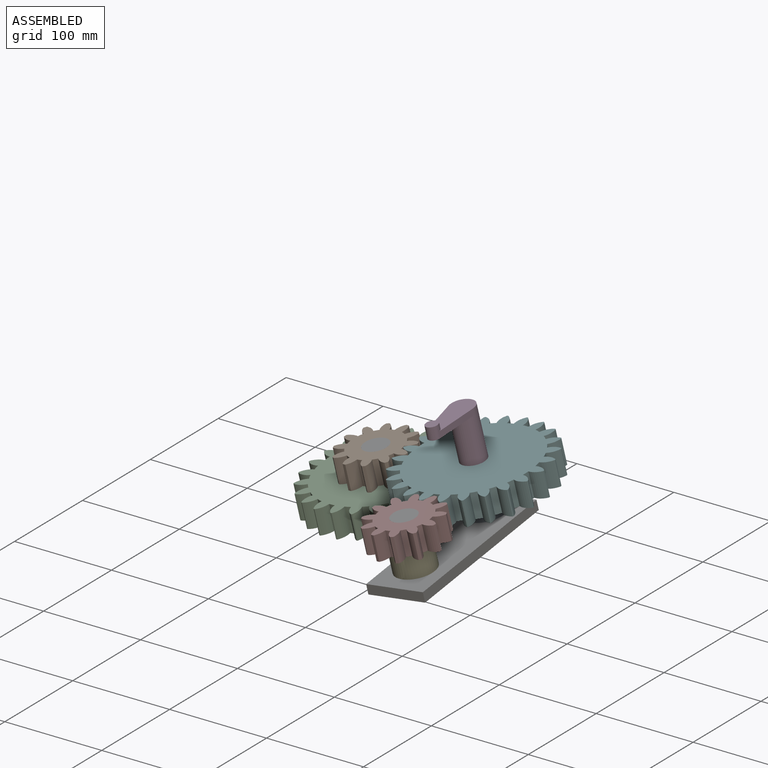
[diagram: assembled view]
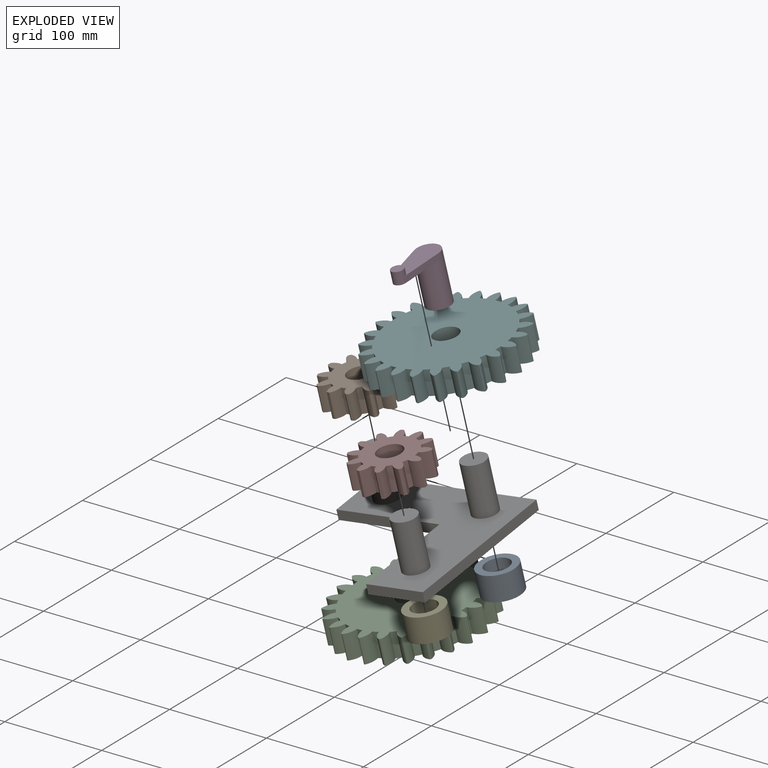
[diagram: exploded view]
GUIDED TOUR — MATED ASSEMBLY (Onshape document 583caeb09afc14109afed7fd, AutoMate assembly 583caeb09afc14109afed7fd_7502357304df3976cc79248a_cf7e5f4505806b6eaf4d80a4_default)

This assembly has 8 components, labeled P0..P7 below (a component is one placed occurrence of a part; the same part can appear more than once), held together by 8 mates. A mate is a constraint between two components; its type names the relative motion it leaves free:
  FASTENED — locks the two components together rigidly (no relative motion),
  REVOLUTE — leaves rotation about the listed axis free (a hinge).
Axis/direction vectors are unit vectors and 'through' points are millimeter coordinates, both in the assembly's world frame.

MATES
  1. REVOLUTE "Revolute 1": P1 <-> P6, axis (-0.146, -0.131, 0.980) through (-129.45, 102.98, 50.23) mm
  2. FASTENED "Fastened 2": P2 <-> P1, direction (-0.146, -0.131, 0.980) through (-125.73, 106.31, 25.33) mm
  3. REVOLUTE "Revolute 3": P7 <-> P6, axis (-0.146, -0.131, 0.980) through (-27.07, -1.62, 51.53) mm
  4. REVOLUTE "Revolute 2": P2 <-> P6, axis (0.146, 0.131, -0.980) through (-122.01, 109.64, 0.43) mm
  5. FASTENED "Fastened 4": P4 <-> P6, direction (-0.146, -0.131, 0.980) through (-19.63, 5.05, 1.72) mm
  6. FASTENED "Fastened 3": P3 <-> P5, direction (0.146, 0.131, -0.980) through (-27.07, 100.97, 65.26) mm
  7. FASTENED "Fastened 1": P0 <-> P6, direction (-0.146, -0.131, 0.980) through (-19.63, 107.63, 15.45) mm
  8. REVOLUTE "Revolute 4": P5 <-> P6, axis (0.146, 0.131, -0.980) through (-27.07, 100.97, 65.26) mm

ASSEMBLY ORDER
  1. P6 — the base component [order heuristic]
  2. P0 — core [order heuristic]
  3. P1 — core [order heuristic]
  4. P2 — core [order heuristic]
  5. P4 — core [order heuristic]
  6. P5 — core [order heuristic]
  7. P7 — core [order heuristic]
  8. P3 [order verified]
Order-tag legend:
  [order verified] — this step's position reverses a verified removal order: the component was checked to insert without passing through the ones already placed.
  [order heuristic] — the first 7 components form the assembly's core: parts whose collision-free extraction could not be verified, listed in mate-graph order.

Of the 8 components, 6 carry the full construction recipe — the FeatureScript program that regenerates the part's solid from scratch; the rest are supplied as boundary geometry only.
Each toured component is shown spotlighted twice — in the assembled view, then in the exploded view, where a leader line traces a displaced component back to its assembled socket (saturated green if recipe-attached, orange if geometry-only; every other component desaturated gray) — followed by its recipe or geometry summary and the mates that hold it.
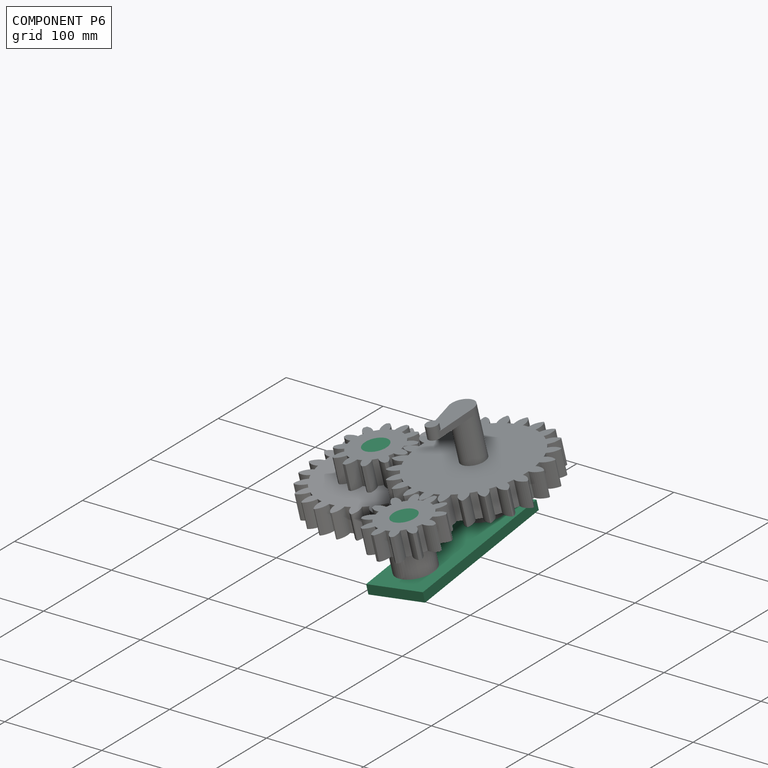
[diagram: component P6 — assembled]
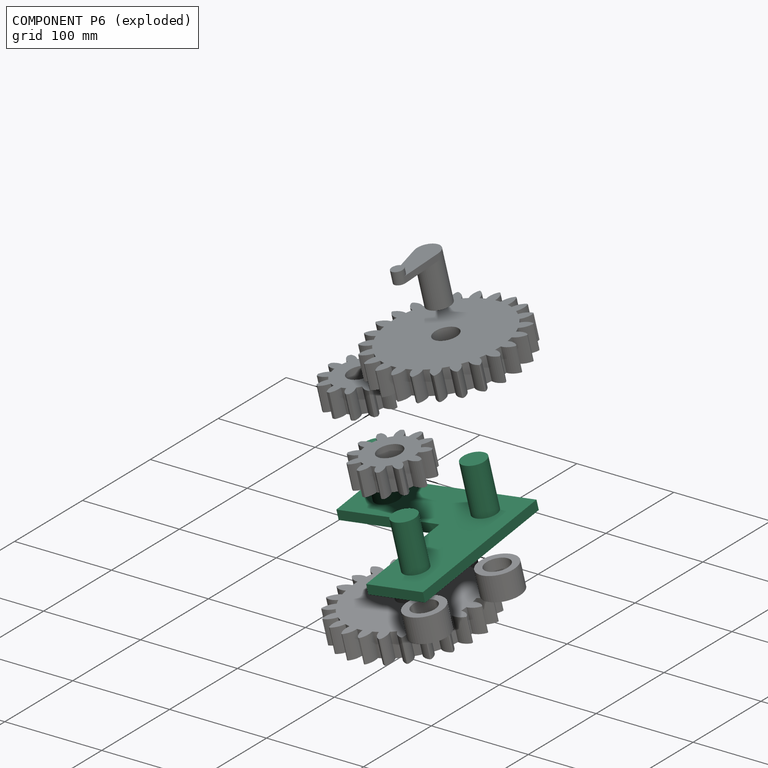
[diagram: component P6 — exploded]
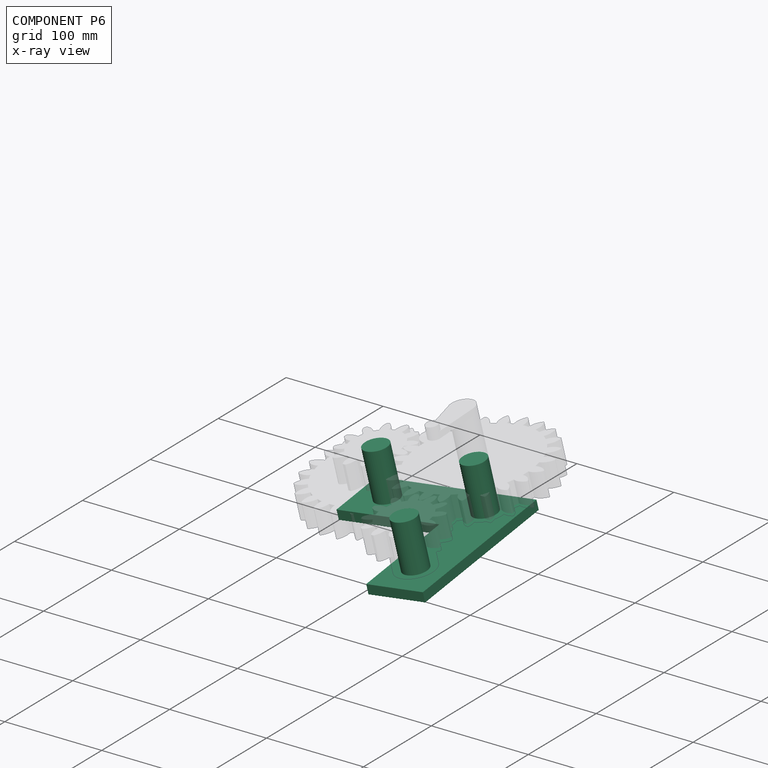
[diagram: component P6 — x-ray view]
COMPONENT P6 — recipe-attached (CADFS 00352307, mesh-verified: the recipe's output STEP matches this component's geometry to below the mesh-comparison resolution (tessellation chordal tolerance ~0.37 mm)).
Held by: REVOLUTE mate "Revolute 1" to P1; REVOLUTE mate "Revolute 3" to P7; REVOLUTE mate "Revolute 2" to P2; FASTENED mate "Fastened 4" to P4; FASTENED mate "Fastened 1" to P0; REVOLUTE mate "Revolute 4" to P5.
Construction recipe (FeatureScript — the CAD program that rebuilds this solid; sketch coordinates are in the units given by the * unit suffixes, e.g. mm):

FeatureScript 1511;
import(path : "onshape/std/geometry.fs", version : "1511.0");
import(path : "onshape/std/common.fs", version : "1511.0");
const mm = millimeter;
const VERTEX = EntityType.VERTEX;
const EDGE = EntityType.EDGE;
const FACE = EntityType.FACE;
const BODY = EntityType.BODY;
function v(x, y){return vector(x, y);}
function OD(order){return orderDisambiguation(order);}
function OSD(set){return originalSetDisambiguation(set);}
function TD(topology){return topologyDisambiguation(topology);}
function TDD(query){return trueDependencyDisambiguation(query);}
function sQuery(a, b, c) {return sketchEntityQuery(a, b, c);}

annotation { "Feature Type Name" : "Feature", "Feature Type Description" : "" }
export const myFeature = defineFeature(function(context is Context, id is Id, definition is map)
    precondition{}
    {
        {
            var Q0;
            Q0=qCreatedBy(makeId("Front.planeOp"),FACE);
            var sketch = newSketch(context, id + "F0", { "sketchPlane" : qUnion([Q0])});
            skLineSegment(sketch, "E0.bottom", {"start": v(-168.9, 60) * mm, "end": v(0, 60) * mm});
            skLineSegment(sketch, "E0.top", {"start": v(-168.9, 0) * mm, "end": v(0, 0) * mm});
            skLineSegment(sketch, "E0.left", {"start": v(-168.9, 60) * mm, "end": v(-168.9, 0) * mm});
            skLineSegment(sketch, "E0.right", {"start": v(0, 60) * mm, "end": v(0, 0) * mm});
            skCircle(sketch, "E1", {"center": v(-136.2, 30) * mm, "radius": 12.7 * mm});
            skPoint(sketch, "E1.centerSnap0", {"position": v(-168.9, 30) * mm});
            skCircle(sketch, "E2", {"center": v(-32.7, 30) * mm, "radius": 12.7 * mm});
            skLineSegment(sketch, "E3", {"start": v(0, 30) * mm, "end": v(-168.9, 30) * mm});
            skLineSegment(sketch, "E4", {"start": v(-60, 60) * mm, "end": v(-60, -108.9) * mm});
            skLineSegment(sketch, "E5", {"start": v(0, 60) * mm, "end": v(0, -108.9) * mm});
            skLineSegment(sketch, "E6", {"start": v(-60, -108.9) * mm, "end": v(0, -108.9) * mm});
            skCircle(sketch, "E7", {"center": v(-32.7, -73.5) * mm, "radius": 12.7 * mm});
            skSolve(sketch);
        }
        {
            var Q0;
            {var subQ5=sQuery(id+"F0.wireOp",EDGE,"E0.bottom");Q0=makeQuery(id+"F0.imprint","IMPRINT",FACE,{"disambiguationData":[TD([[makeQuery(id+"F0.imprint","IMPRINT",EDGE,{"derivedFrom":subQ5}),-1.0]])]});}
            var Q1;
            {var subQ7=sQuery(id+"F0.wireOp",EDGE,"E0.top");Q1=makeQuery(id+"F0.imprint","IMPRINT",FACE,{"disambiguationData":[TD([[makeQuery(id+"F0.imprint","IMPRINT",EDGE,{"derivedFrom":subQ7}),1.0]])]});}
            var Q2;
            {var subQ0=sQuery(id+"F0.wireOp",EDGE,"E6");Q2=makeQuery(id+"F0.imprint","IMPRINT",FACE,{"disambiguationData":[TD([[makeQuery(id+"F0.imprint","IMPRINT",EDGE,{"derivedFrom":subQ0}),1.0]])]});}
            extrude(context, id + "F1", {"entities" : qUnion([Q0, Q1, Q2]), "depth" : 10 * mm});
        }
        {
            var Q0;
            {var subQ0=sQuery(id+"F0.wireOp",EDGE,"E3");var subQ1=sQuery(id+"F0.wireOp",EDGE,"E1");var subQ2=makeQuery(id+"F0.imprint","INTERSECT",VERTEX,{"disambiguationData":[OD(0.0)],"derivedFrom":[subQ1,subQ0]});Q0=makeQuery(id+"F0.imprint","IMPRINT",FACE,{"disambiguationData":[TD([[makeQuery(id+"F0.imprint","IMPRINT",EDGE,{"disambiguationData":[TD([[subQ2,1.0]])],"derivedFrom":subQ1}),1.0]])]});}
            var Q1;
            {var subQ0=sQuery(id+"F0.wireOp",EDGE,"E3");var subQ1=sQuery(id+"F0.wireOp",EDGE,"E1");var subQ2=makeQuery(id+"F0.imprint","INTERSECT",VERTEX,{"disambiguationData":[OD(0.0)],"derivedFrom":[subQ1,subQ0]});Q1=makeQuery(id+"F0.imprint","IMPRINT",FACE,{"disambiguationData":[TD([[makeQuery(id+"F0.imprint","IMPRINT",EDGE,{"disambiguationData":[TD([[subQ2,-1.0]])],"derivedFrom":subQ1}),1.0]])]});}
            var Q2;
            {var subQ0=sQuery(id+"F0.wireOp",EDGE,"E3");var subQ1=sQuery(id+"F0.wireOp",EDGE,"E2");var subQ2=makeQuery(id+"F0.imprint","INTERSECT",VERTEX,{"disambiguationData":[OD(0.0)],"derivedFrom":[subQ1,subQ0]});Q2=makeQuery(id+"F0.imprint","IMPRINT",FACE,{"disambiguationData":[TD([[makeQuery(id+"F0.imprint","IMPRINT",EDGE,{"disambiguationData":[TD([[subQ2,-1.0]])],"derivedFrom":subQ1}),1.0]])]});}
            var Q3;
            {var subQ0=sQuery(id+"F0.wireOp",EDGE,"E3");var subQ1=sQuery(id+"F0.wireOp",EDGE,"E2");var subQ2=makeQuery(id+"F0.imprint","INTERSECT",VERTEX,{"disambiguationData":[OD(0.0)],"derivedFrom":[subQ1,subQ0]});Q3=makeQuery(id+"F0.imprint","IMPRINT",FACE,{"disambiguationData":[TD([[makeQuery(id+"F0.imprint","IMPRINT",EDGE,{"disambiguationData":[TD([[subQ2,1.0]])],"derivedFrom":subQ1}),1.0]])]});}
            var Q4;
            Q4=makeQuery(id+"F0.imprint","IMPRINT",FACE,{"disambiguationData":[TD([[makeQuery(id+"F0.imprint","IMPRINT",EDGE,{"derivedFrom":sQuery(id+"F0.wireOp",EDGE,"E7")}),1.0]])]});
            extrude(context, id + "F2", {"entities" : qUnion([Q0, Q1, Q2, Q3, Q4]), "operationType" : NewBodyOperationType.ADD, "depth" : 60.8 * mm});
        }
    });
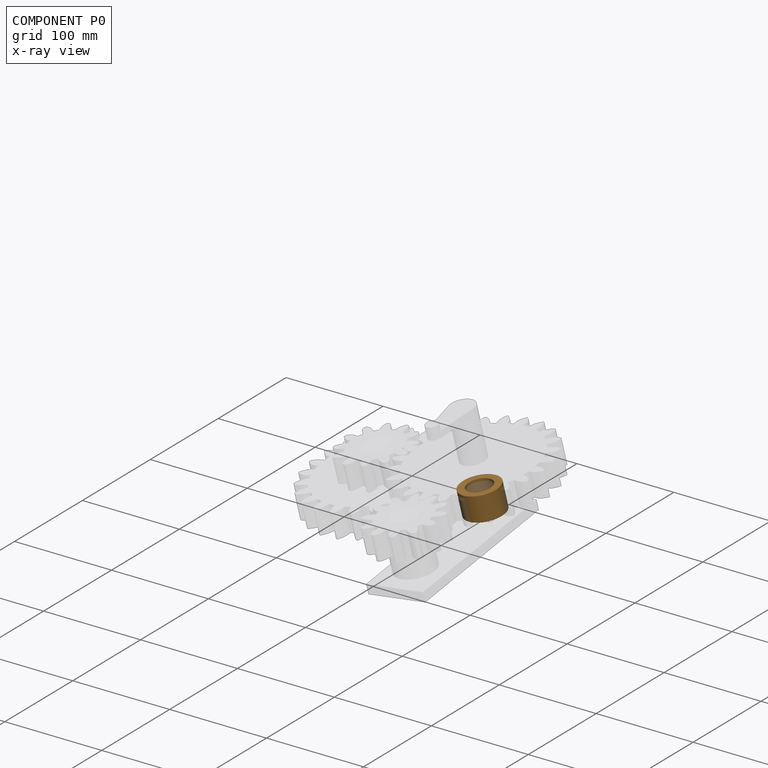
[diagram: component P0 — x-ray view]
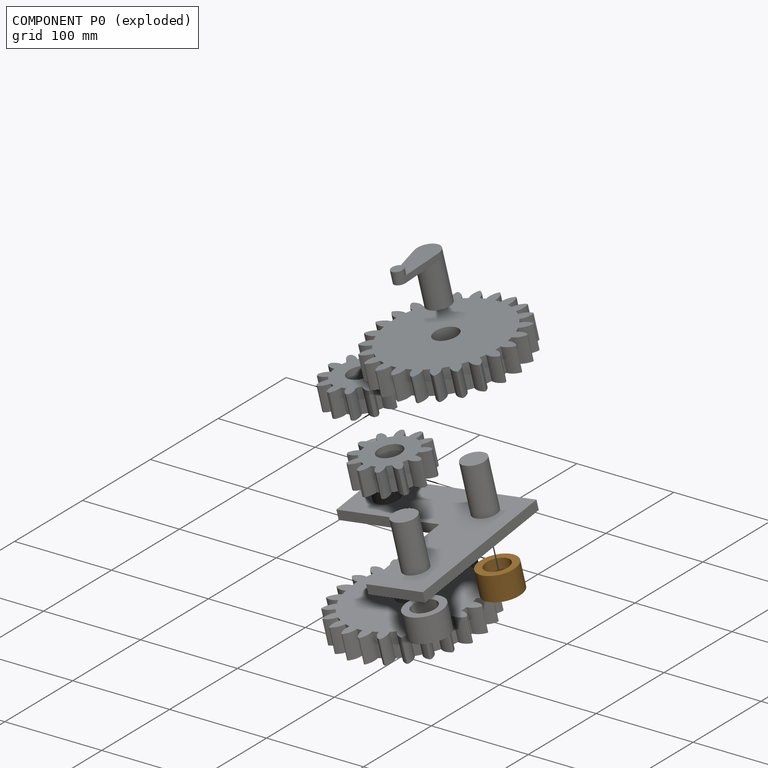
[diagram: component P0 — exploded]
COMPONENT P0 — geometry summary (no construction recipe available for this part):
  bounding box: 40.0 x 40.0 x 25.4 mm
  B-rep topology: 1 solid, 4 faces, 12 edges
  volume: 19048 mm^3 (47% of its bounding box)
  symmetry: 2-fold rotationally symmetric about the x axis; revolution-symmetric about the y axis through its bounding-box center; 2-fold rotationally symmetric about the z axis; mirror-symmetric across its x mid-plane, y mid-plane, z mid-plane
Held by: FASTENED mate "Fastened 1" to P6.
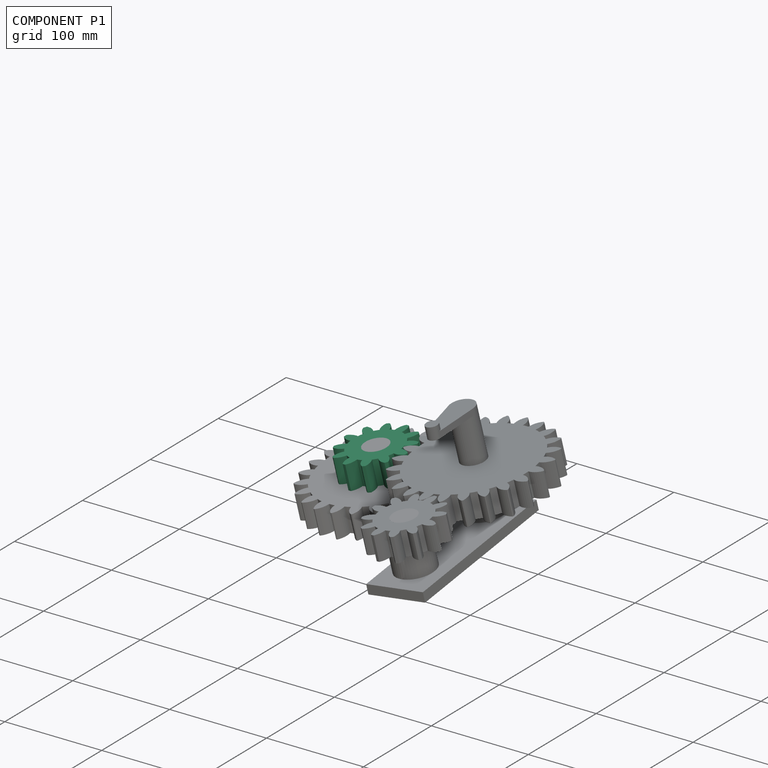
[diagram: component P1 — assembled]
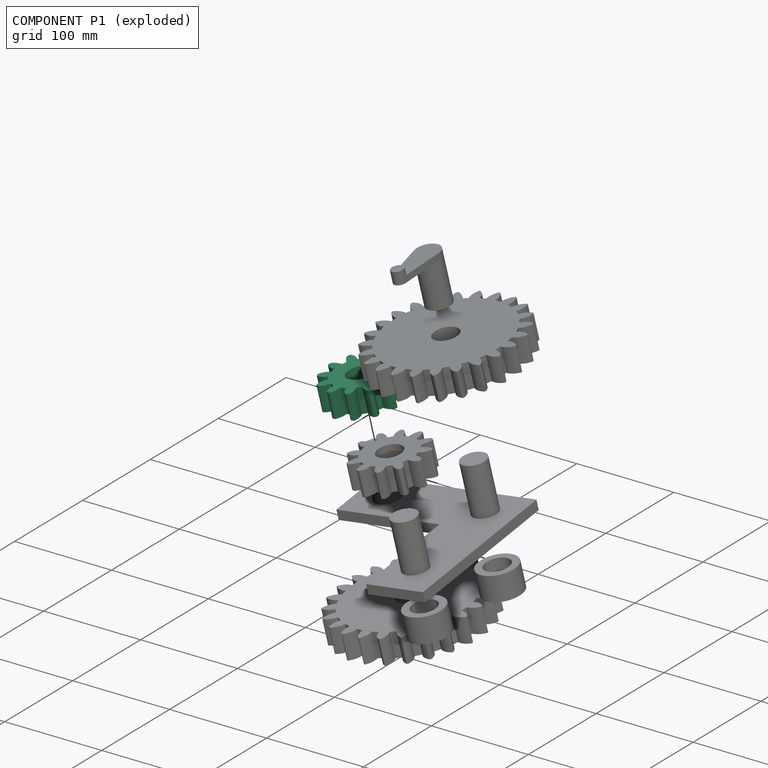
[diagram: component P1 — exploded]
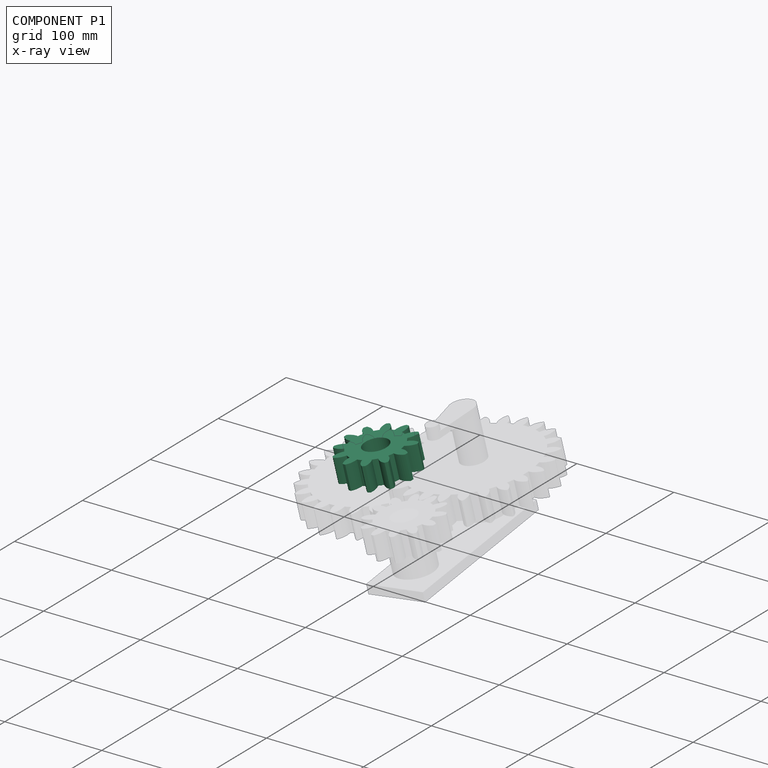
[diagram: component P1 — x-ray view]
COMPONENT P1 — recipe-attached (CADFS 00387537, mesh-verified: the recipe's output STEP matches this component's geometry to below the mesh-comparison resolution (tessellation chordal tolerance ~0.165 mm)).
Held by: REVOLUTE mate "Revolute 1" to P6; FASTENED mate "Fastened 2" to P2.
Construction recipe (FeatureScript — the CAD program that rebuilds this solid; sketch coordinates are in the units given by the * unit suffixes, e.g. mm):

FeatureScript 1511;
import(path : "onshape/std/geometry.fs", version : "1511.0");
import(path : "onshape/std/common.fs", version : "1511.0");
const mm = millimeter;
const VERTEX = EntityType.VERTEX;
const EDGE = EntityType.EDGE;
const FACE = EntityType.FACE;
const BODY = EntityType.BODY;
function v(x, y){return vector(x, y);}
function OD(order){return orderDisambiguation(order);}
function OSD(set){return originalSetDisambiguation(set);}
function TD(topology){return topologyDisambiguation(topology);}
function TDD(query){return trueDependencyDisambiguation(query);}
function sQuery(a, b, c) {return sketchEntityQuery(a, b, c);}

annotation { "Feature Type Name" : "Feature", "Feature Type Description" : "" }
export const myFeature = defineFeature(function(context is Context, id is Id, definition is map)
    precondition{}
    {
        {
            assignVariable(context, id + "F0", {"name" : "NOT", "anyValue" : 12});
        }
        {
            var Q0;
            Q0=qCreatedBy(makeId("Front.planeOp"),FACE);
            var sketch = newSketch(context, id + "F1", { "sketchPlane" : qUnion([Q0])});
            skCircle(sketch, "E0", {"center": v(0, 0) * mm, "radius": 38.1 * mm});
            skCircle(sketch, "E1", {"center": v(0, 0) * mm, "radius": 32.66 * mm});
            skCircle(sketch, "E2", {"center": v(0, 0) * mm, "radius": 27.21 * mm});
            skLineSegment(sketch, "E3", {"start": v(0, 0) * mm, "end": v(0, 56.5) * mm});
            skLineSegment(sketch, "E4", {"start": v(0, 0) * mm, "end": v(-7.42, 56.35) * mm});
            skLineSegment(sketch, "E5", {"start": v(0, 32.66) * mm, "end": v(-56.68, 32.66) * mm});
            skLineSegment(sketch, "E6", {"start": v(0, 32.66) * mm, "end": v(-52.94, 13.39) * mm});
            skCircle(sketch, "E7", {"center": v(0, 32.66) * mm, "radius": 14.6 * mm});
            skArc(sketch, "E8", {"start": v(0.87, 27.2) * mm, "mid": v(-0.13, 33.01) * mm, "end": v(-3.36, 37.95) * mm});
            skArc(sketch, "E9.MirrorCS", {"start": v(-7.88, 26.05) * mm, "mid": v(-8.41, 31.92) * mm, "end": v(-6.58, 37.53) * mm});
            skSolve(sketch);
        }
        {
            var Q0;
            {var subQ0=sQuery(id+"F1.wireOp",EDGE,"E3");var subQ1=sQuery(id+"F1.wireOp",EDGE,"E2");var subQ2=makeQuery(id+"F1.imprint","INTERSECT",VERTEX,{"derivedFrom":[subQ1,subQ0]});Q0=makeQuery(id+"F1.imprint","IMPRINT",FACE,{"disambiguationData":[TD([[makeQuery(id+"F1.imprint","IMPRINT",EDGE,{"disambiguationData":[TD([[subQ2,-1.0]])],"derivedFrom":subQ1}),-1.0]])]});}
            var Q1;
            {var subQ0=sQuery(id+"F1.wireOp",EDGE,"E9.MirrorCS");var subQ1=sQuery(id+"F1.wireOp",EDGE,"E2");var subQ2=makeQuery(id+"F1.imprint","INTERSECT",VERTEX,{"derivedFrom":[subQ1,subQ0]});Q1=makeQuery(id+"F1.imprint","IMPRINT",FACE,{"disambiguationData":[TD([[makeQuery(id+"F1.imprint","IMPRINT",EDGE,{"disambiguationData":[TD([[subQ2,1.0]])],"derivedFrom":subQ1}),-1.0]])]});}
            var Q2;
            {var subQ0=sQuery(id+"F1.wireOp",EDGE,"E4");var subQ1=sQuery(id+"F1.wireOp",EDGE,"E1");var subQ2=makeQuery(id+"F1.imprint","INTERSECT",VERTEX,{"derivedFrom":[subQ1,subQ0]});Q2=makeQuery(id+"F1.imprint","IMPRINT",FACE,{"disambiguationData":[TD([[makeQuery(id+"F1.imprint","IMPRINT",EDGE,{"disambiguationData":[TD([[subQ2,-1.0]])],"derivedFrom":subQ1}),1.0]])]});}
            var Q3;
            {var subQ0=sQuery(id+"F1.wireOp",EDGE,"E4");var subQ1=sQuery(id+"F1.wireOp",EDGE,"E1");var subQ2=makeQuery(id+"F1.imprint","INTERSECT",VERTEX,{"derivedFrom":[subQ1,subQ0]});Q3=makeQuery(id+"F1.imprint","IMPRINT",FACE,{"disambiguationData":[TD([[makeQuery(id+"F1.imprint","IMPRINT",EDGE,{"disambiguationData":[TD([[subQ2,-1.0]])],"derivedFrom":subQ1}),-1.0]])]});}
            var Q4;
            {var subQ1=sQuery(id+"F1.wireOp",EDGE,"E1");var subQ3=sQuery(id+"F1.wireOp",EDGE,"E4");var subQ4=makeQuery(id+"F1.imprint","INTERSECT",VERTEX,{"derivedFrom":[subQ1,subQ3]});Q4=makeQuery(id+"F1.imprint","IMPRINT",FACE,{"disambiguationData":[TD([[makeQuery(id+"F1.imprint","IMPRINT",EDGE,{"disambiguationData":[TD([[subQ4,1.0]])],"derivedFrom":subQ3}),-1.0]])]});}
            var Q5;
            {var subQ1=sQuery(id+"F1.wireOp",EDGE,"E1");var subQ3=sQuery(id+"F1.wireOp",EDGE,"E4");var subQ4=makeQuery(id+"F1.imprint","INTERSECT",VERTEX,{"derivedFrom":[subQ1,subQ3]});Q5=makeQuery(id+"F1.imprint","IMPRINT",FACE,{"disambiguationData":[TD([[makeQuery(id+"F1.imprint","IMPRINT",EDGE,{"disambiguationData":[TD([[subQ4,-1.0]])],"derivedFrom":subQ3}),-1.0]])]});}
            var Q6;
            {var subQ0=sQuery(id+"F1.wireOp",EDGE,"E8");var subQ1=sQuery(id+"F1.wireOp",EDGE,"E0");var subQ2=makeQuery(id+"F1.imprint","INTERSECT",VERTEX,{"derivedFrom":[subQ1,subQ0]});Q6=makeQuery(id+"F1.imprint","IMPRINT",FACE,{"disambiguationData":[TD([[makeQuery(id+"F1.imprint","IMPRINT",EDGE,{"disambiguationData":[TD([[subQ2,-1.0]])],"derivedFrom":subQ1}),1.0]])]});}
            var Q7;
            {var subQ0=sQuery(id+"F1.wireOp",EDGE,"E9.MirrorCS");var subQ1=sQuery(id+"F1.wireOp",EDGE,"E0");var subQ2=makeQuery(id+"F1.imprint","INTERSECT",VERTEX,{"derivedFrom":[subQ1,subQ0]});Q7=makeQuery(id+"F1.imprint","IMPRINT",FACE,{"disambiguationData":[TD([[makeQuery(id+"F1.imprint","IMPRINT",EDGE,{"disambiguationData":[TD([[subQ2,1.0]])],"derivedFrom":subQ1}),1.0]])]});}
            var Q8;
            {var subQ0=sQuery(id+"F1.wireOp",EDGE,"E8");var subQ1=sQuery(id+"F1.wireOp",EDGE,"E2");var subQ2=makeQuery(id+"F1.imprint","INTERSECT",VERTEX,{"derivedFrom":[subQ1,subQ0]});Q8=makeQuery(id+"F1.imprint","IMPRINT",FACE,{"disambiguationData":[TD([[makeQuery(id+"F1.imprint","IMPRINT",EDGE,{"disambiguationData":[TD([[subQ2,-1.0]])],"derivedFrom":subQ1}),-1.0]])]});}
            var Q9;
            {var subQ0=sQuery(id+"F1.wireOp",EDGE,"E7");var subQ1=sQuery(id+"F1.wireOp",EDGE,"E2");var subQ8=makeQuery(id+"F1.imprint","INTERSECT",VERTEX,{"disambiguationData":[OD(0.0)],"derivedFrom":[subQ1,subQ0]});Q9=makeQuery(id+"F1.imprint","IMPRINT",FACE,{"disambiguationData":[TD([[makeQuery(id+"F1.imprint","IMPRINT",EDGE,{"disambiguationData":[TD([[subQ8,1.0]])],"derivedFrom":subQ1}),1.0]])]});}
            var Q10;
            {var subQ0=sQuery(id+"F1.wireOp",EDGE,"E2");var subQ1=makeQuery(id+"F1.imprint","INTERSECT",VERTEX,{"derivedFrom":[subQ0,sQuery(id+"F1.wireOp",EDGE,"E9.MirrorCS")]});Q10=makeQuery(id+"F1.imprint","IMPRINT",FACE,{"disambiguationData":[TD([[makeQuery(id+"F1.imprint","IMPRINT",EDGE,{"disambiguationData":[TD([[subQ1,1.0]])],"derivedFrom":subQ0}),1.0]])]});}
            var Q11;
            {var subQ0=sQuery(id+"F1.wireOp",EDGE,"E3");var subQ1=sQuery(id+"F1.wireOp",EDGE,"E2");var subQ2=makeQuery(id+"F1.imprint","INTERSECT",VERTEX,{"derivedFrom":[subQ1,subQ0]});Q11=makeQuery(id+"F1.imprint","IMPRINT",FACE,{"disambiguationData":[TD([[makeQuery(id+"F1.imprint","IMPRINT",EDGE,{"disambiguationData":[TD([[subQ2,-1.0]])],"derivedFrom":subQ1}),1.0]])]});}
            var Q12;
            {var subQ0=sQuery(id+"F1.wireOp",EDGE,"E4");var subQ1=sQuery(id+"F1.wireOp",EDGE,"E3");var subQ2=makeQuery(id+"F1.imprint","INTERSECT",VERTEX,{"derivedFrom":[subQ1,subQ0]});Q12=makeQuery(id+"F1.imprint","IMPRINT",FACE,{"disambiguationData":[TD([[makeQuery(id+"F1.imprint","IMPRINT",EDGE,{"disambiguationData":[TD([[subQ2,-1.0]])],"derivedFrom":subQ1}),1.0]])]});}
            var Q13;
            {var subQ0=sQuery(id+"F1.wireOp",EDGE,"E2");var subQ1=makeQuery(id+"F1.imprint","INTERSECT",VERTEX,{"derivedFrom":[subQ0,sQuery(id+"F1.wireOp",EDGE,"E8")]});Q13=makeQuery(id+"F1.imprint","IMPRINT",FACE,{"disambiguationData":[TD([[makeQuery(id+"F1.imprint","IMPRINT",EDGE,{"disambiguationData":[TD([[subQ1,1.0]])],"derivedFrom":subQ0}),1.0]])]});}
            extrude(context, id + "F2", {"entities" : qUnion([Q0, Q1, Q2, Q3, Q4, Q5, Q6, Q7, Q8, Q9, Q10, Q11, Q12, Q13]), "endBound" : BoundingType.SYMMETRIC, "depth" : 25.4 * mm});
        }
        {
            var Q0;
            Q0=makeQuery(id+"F2.opExtrude","SWEPT_BODY",BODY,{"disambiguationData":[OSD([sQuery(id+"F1.wireOp",EDGE,"E0"),sQuery(id+"F1.wireOp",EDGE,"E2"),sQuery(id+"F1.wireOp",EDGE,"E8"),sQuery(id+"F1.wireOp",EDGE,"E9.MirrorCS")])]});
            var Q1;
            Q1=makeQuery(id+"F2.opExtrude","SWEPT_FACE",FACE,{"disambiguationData":[OSD([sQuery(id+"F1.wireOp",EDGE,"E2")])]});
            circularPattern(context, id + "F3", {"operationType" : NewBodyOperationType.ADD, "entities" : qUnion([Q0]), "axis" : qUnion([Q1]), "angle" : (360 / getVariable(context, 'NOT')) * degree, "instanceCount" : getVariable(context, 'NOT')});
        }
        {
            var Q0;
            {var subQ0=makeQuery(id+"F2.opExtrude","CAP_FACE",FACE,{"disambiguationData":[OSD([sQuery(id+"F1.wireOp",EDGE,"E0"),sQuery(id+"F1.wireOp",EDGE,"E2"),sQuery(id+"F1.wireOp",EDGE,"E8"),sQuery(id+"F1.wireOp",EDGE,"E9.MirrorCS")])],"isStart":false});Q0=makeQuery(id+"F3.boolean.opBoolean","MERGE",FACE,{"derivedFrom":[subQ0,makeQuery(id+"F3.opPattern","COPY",FACE,{"derivedFrom":subQ0,"instanceName":"1"}),makeQuery(id+"F3.opPattern","COPY",FACE,{"derivedFrom":subQ0,"instanceName":"2"}),makeQuery(id+"F3.opPattern","COPY",FACE,{"derivedFrom":subQ0,"instanceName":"3"}),makeQuery(id+"F3.opPattern","COPY",FACE,{"derivedFrom":subQ0,"instanceName":"4"}),makeQuery(id+"F3.opPattern","COPY",FACE,{"derivedFrom":subQ0,"instanceName":"5"}),makeQuery(id+"F3.opPattern","COPY",FACE,{"derivedFrom":subQ0,"instanceName":"6"}),makeQuery(id+"F3.opPattern","COPY",FACE,{"derivedFrom":subQ0,"instanceName":"7"}),makeQuery(id+"F3.opPattern","COPY",FACE,{"derivedFrom":subQ0,"instanceName":"8"}),makeQuery(id+"F3.opPattern","COPY",FACE,{"derivedFrom":subQ0,"instanceName":"9"}),makeQuery(id+"F3.opPattern","COPY",FACE,{"derivedFrom":subQ0,"instanceName":"10"}),makeQuery(id+"F3.opPattern","COPY",FACE,{"derivedFrom":subQ0,"instanceName":"11"})]});}
            var sketch = newSketch(context, id + "F4", { "sketchPlane" : qUnion([Q0])});
            skPoint(sketch, "E10", {"position": v(0, 0) * mm});
            skSolve(sketch);
        }
        {
            var Q0;
            Q0=sQuery(id+"F4.wireOp",VERTEX,"E10");
            var Q1;
            Q1=makeQuery(id+"F2.opExtrude","SWEPT_BODY",BODY,{"disambiguationData":[OSD([sQuery(id+"F1.wireOp",EDGE,"E0"),sQuery(id+"F1.wireOp",EDGE,"E2"),sQuery(id+"F1.wireOp",EDGE,"E8"),sQuery(id+"F1.wireOp",EDGE,"E9.MirrorCS")])]});
            hole(context, id + "F5", {"style" : HoleStyle.SIMPLE, "holeDiameter" : 25.4 * mm, "endStyle" : HoleEndStyle.THROUGH, "locations" : qUnion([Q0]), "scope" : qUnion([Q1])});
        }
    });
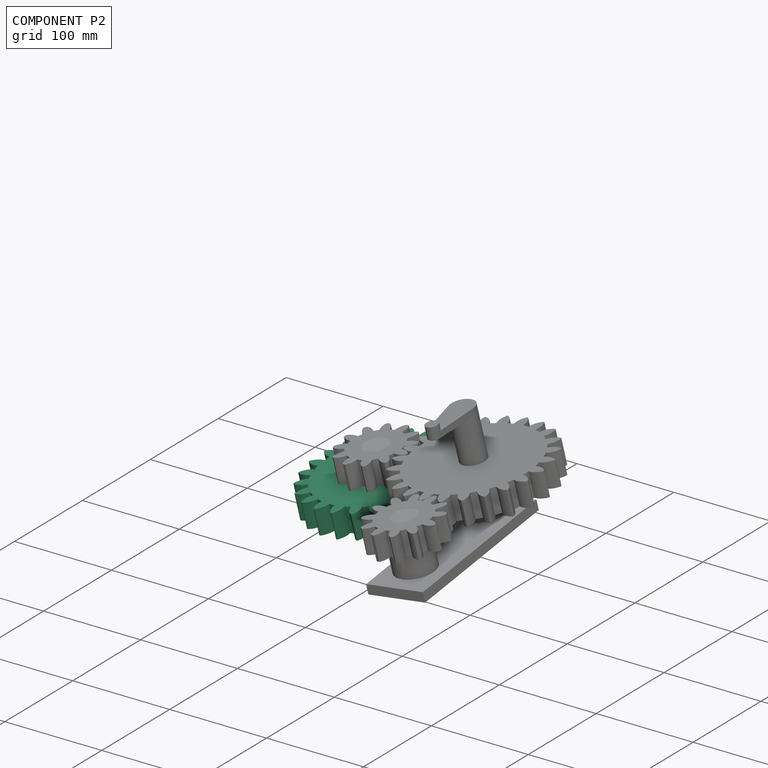
[diagram: component P2 — assembled]
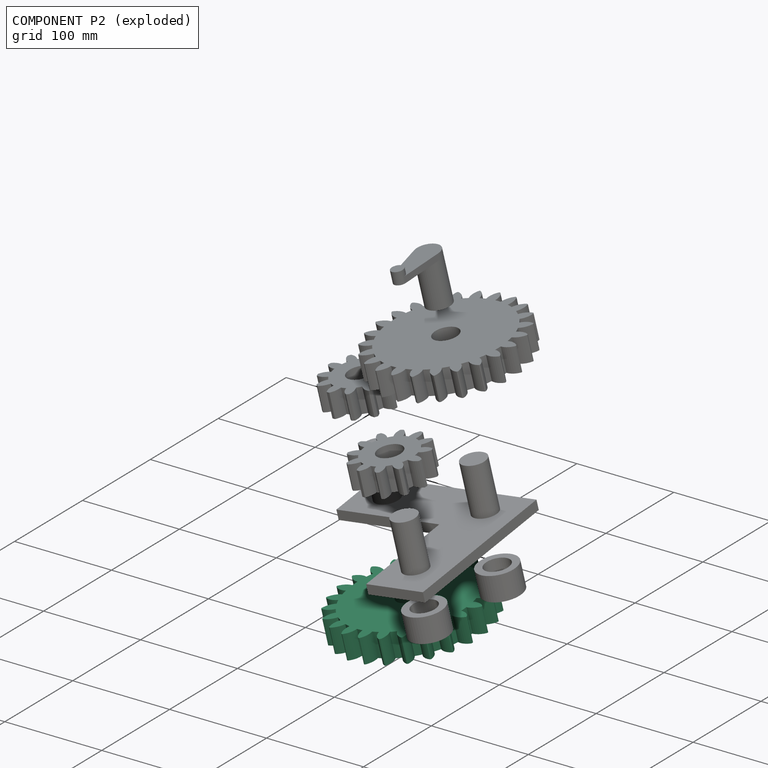
[diagram: component P2 — exploded]
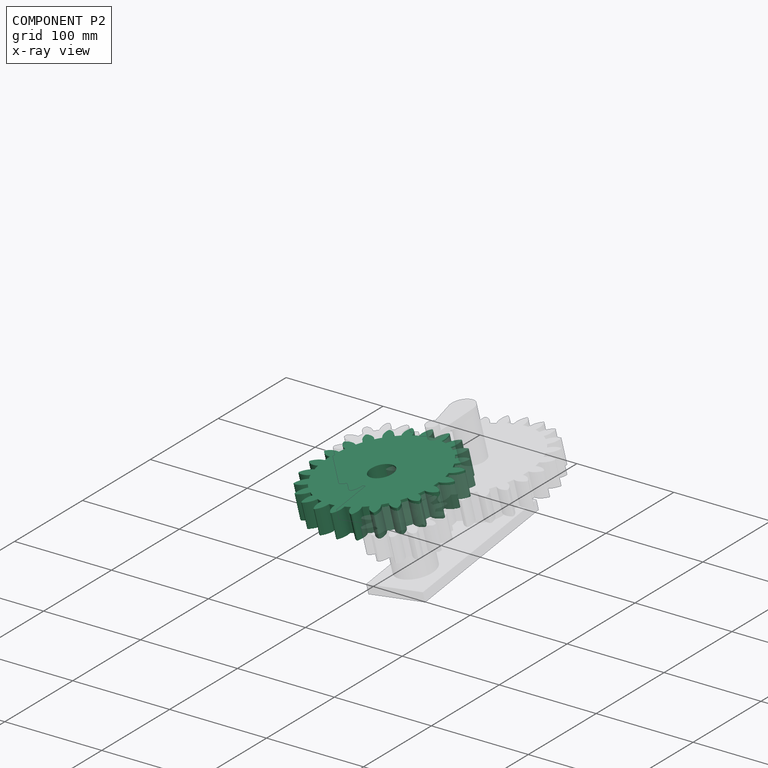
[diagram: component P2 — x-ray view]
COMPONENT P2 — recipe-attached (CADFS 00226644, mesh-verified: the recipe's output STEP matches this component's geometry to below the mesh-comparison resolution (tessellation chordal tolerance ~0.325 mm)).
Held by: FASTENED mate "Fastened 2" to P1; REVOLUTE mate "Revolute 2" to P6.
Construction recipe (FeatureScript — the CAD program that rebuilds this solid; sketch coordinates are in the units given by the * unit suffixes, e.g. mm):

FeatureScript 1511;
import(path : "onshape/std/geometry.fs", version : "1511.0");
import(path : "onshape/std/common.fs", version : "1511.0");
const mm = millimeter;
const VERTEX = EntityType.VERTEX;
const EDGE = EntityType.EDGE;
const FACE = EntityType.FACE;
const BODY = EntityType.BODY;
function v(x, y){return vector(x, y);}
function OD(order){return orderDisambiguation(order);}
function OSD(set){return originalSetDisambiguation(set);}
function TD(topology){return topologyDisambiguation(topology);}
function TDD(query){return trueDependencyDisambiguation(query);}
function sQuery(a, b, c) {return sketchEntityQuery(a, b, c);}

annotation { "Feature Type Name" : "Feature", "Feature Type Description" : "" }
export const myFeature = defineFeature(function(context is Context, id is Id, definition is map)
    precondition{}
    {
        {
            var Q0;
            Q0=qCreatedBy(makeId("Front.planeOp"),FACE);
            var sketch = newSketch(context, id + "F0", { "sketchPlane" : qUnion([Q0])});
            skPoint(sketch, "E0.rect.middle", {"position": v(0, 0) * mm});
            skLineSegment(sketch, "E1", {"start": v(0, 0) * mm, "end": v(0, 76.2) * mm});
            skLineSegment(sketch, "E2", {"start": v(0, 0) * mm, "end": v(0, -76.2) * mm});
            skLineSegment(sketch, "E3", {"start": v(0, 0) * mm, "end": v(19.72, 73.6) * mm});
            skLineSegment(sketch, "E4", {"start": v(0, 0) * mm, "end": v(38.1, 66) * mm});
            skLineSegment(sketch, "E5", {"start": v(0, 0) * mm, "end": v(53.88, 53.88) * mm});
            skLineSegment(sketch, "E6", {"start": v(0, 0) * mm, "end": v(66, 38.1) * mm});
            skLineSegment(sketch, "E7", {"start": v(0, 0) * mm, "end": v(73.6, 19.72) * mm});
            skLineSegment(sketch, "E8", {"start": v(0, 0) * mm, "end": v(76.2, 0) * mm});
            skLineSegment(sketch, "E9", {"start": v(0, 0) * mm, "end": v(73.6, -19.72) * mm});
            skLineSegment(sketch, "E10", {"start": v(0, 0) * mm, "end": v(66, -38.1) * mm});
            skLineSegment(sketch, "E11", {"start": v(0, 0) * mm, "end": v(53.88, -53.88) * mm});
            skLineSegment(sketch, "E12", {"start": v(0, 0) * mm, "end": v(38.1, -66) * mm});
            skLineSegment(sketch, "E13", {"start": v(0, 0) * mm, "end": v(19.72, -73.6) * mm});
            skLineSegment(sketch, "E14", {"start": v(0, 0) * mm, "end": v(-19.72, -73.6) * mm});
            skLineSegment(sketch, "E15", {"start": v(0, 0) * mm, "end": v(-38.1, -66) * mm});
            skLineSegment(sketch, "E16", {"start": v(0, 0) * mm, "end": v(-53.88, -53.88) * mm});
            skLineSegment(sketch, "E17", {"start": v(0, 0) * mm, "end": v(-66, -38.1) * mm});
            skLineSegment(sketch, "E18", {"start": v(0, 0) * mm, "end": v(-73.6, -19.72) * mm});
            skLineSegment(sketch, "E19", {"start": v(0, 0) * mm, "end": v(-76.2, 0.07) * mm});
            skLineSegment(sketch, "E20", {"start": v(0, 0) * mm, "end": v(-73.6, 19.72) * mm});
            skLineSegment(sketch, "E21", {"start": v(0, 0) * mm, "end": v(-66, 38.1) * mm});
            skLineSegment(sketch, "E22", {"start": v(0, 0) * mm, "end": v(-53.88, 53.88) * mm});
            skLineSegment(sketch, "E23", {"start": v(0, 0) * mm, "end": v(-38.1, 66) * mm});
            skLineSegment(sketch, "E24", {"start": v(0, 0) * mm, "end": v(-19.72, 73.6) * mm});
            skCircle(sketch, "E25", {"center": v(0, 0) * mm, "radius": 76.2 * mm});
            skCircle(sketch, "E26", {"center": v(0, 0) * mm, "radius": 69.85 * mm});
            skCircle(sketch, "E27", {"center": v(0, 0) * mm, "radius": 63.5 * mm});
            skLineSegment(sketch, "E28", {"start": v(0, 0) * mm, "end": v(-4.98, 76.04) * mm});
            skLineSegment(sketch, "E29", {"start": v(0, 69.85) * mm, "end": v(-76.58, 69.85) * mm});
            skLineSegment(sketch, "E30", {"start": v(0, 69.85) * mm, "end": v(-76.5, 42) * mm});
            skLineSegment(sketch, "E31", {"start": v(-4.98, 76.04) * mm, "end": v(-7.15, 109.16) * mm});
            skLineSegment(sketch, "E32", {"start": v(0, 76.2) * mm, "end": v(0, 110.22) * mm});
            skCircle(sketch, "E33", {"center": v(0, 69.85) * mm, "radius": 14.6 * mm});
            skPoint(sketch, "E34", {"position": v(-13.72, 64.85) * mm});
            skArc(sketch, "E35", {"start": v(0.82, 63.5) * mm, "mid": v(-0.22, 70.43) * mm, "end": v(-4.37, 76.07) * mm});
            skArc(sketch, "E36.MirrorCS", {"start": v(-9.1, 62.84) * mm, "mid": v(-8.97, 69.85) * mm, "end": v(-5.6, 76) * mm});
            skSolve(sketch);
        }
        {
            var Q0;
            {var subQ1=sQuery(id+"F0.wireOp",EDGE,"E23");var subQ3=sQuery(id+"F0.wireOp",EDGE,"E27");var subQ4=makeQuery(id+"F0.imprint","INTERSECT",VERTEX,{"derivedFrom":[subQ1,subQ3]});Q0=makeQuery(id+"F0.imprint","IMPRINT",FACE,{"disambiguationData":[TD([[makeQuery(id+"F0.imprint","IMPRINT",EDGE,{"disambiguationData":[TD([[subQ4,1.0]])],"derivedFrom":subQ3}),1.0]])]});}
            var Q1;
            {var subQ1=sQuery(id+"F0.wireOp",EDGE,"E22");var subQ3=sQuery(id+"F0.wireOp",EDGE,"E27");var subQ4=makeQuery(id+"F0.imprint","INTERSECT",VERTEX,{"derivedFrom":[subQ1,subQ3]});Q1=makeQuery(id+"F0.imprint","IMPRINT",FACE,{"disambiguationData":[TD([[makeQuery(id+"F0.imprint","IMPRINT",EDGE,{"disambiguationData":[TD([[subQ4,1.0]])],"derivedFrom":subQ3}),1.0]])]});}
            var Q2;
            {var subQ1=sQuery(id+"F0.wireOp",EDGE,"E1");var subQ3=sQuery(id+"F0.wireOp",EDGE,"E33");var subQ4=makeQuery(id+"F0.imprint","INTERSECT",VERTEX,{"derivedFrom":[subQ1,subQ3]});Q2=makeQuery(id+"F0.imprint","IMPRINT",FACE,{"disambiguationData":[TD([[makeQuery(id+"F0.imprint","IMPRINT",EDGE,{"disambiguationData":[TD([[subQ4,1.0]])],"derivedFrom":subQ3}),-1.0]])]});}
            var Q3;
            {var subQ1=sQuery(id+"F0.wireOp",EDGE,"E19");var subQ3=sQuery(id+"F0.wireOp",EDGE,"E27");var subQ4=makeQuery(id+"F0.imprint","INTERSECT",VERTEX,{"derivedFrom":[subQ1,subQ3]});Q3=makeQuery(id+"F0.imprint","IMPRINT",FACE,{"disambiguationData":[TD([[makeQuery(id+"F0.imprint","IMPRINT",EDGE,{"disambiguationData":[TD([[subQ4,1.0]])],"derivedFrom":subQ3}),1.0]])]});}
            var Q4;
            {var subQ1=sQuery(id+"F0.wireOp",EDGE,"E24");var subQ3=sQuery(id+"F0.wireOp",EDGE,"E27");var subQ4=makeQuery(id+"F0.imprint","INTERSECT",VERTEX,{"derivedFrom":[subQ1,subQ3]});Q4=makeQuery(id+"F0.imprint","IMPRINT",FACE,{"disambiguationData":[TD([[makeQuery(id+"F0.imprint","IMPRINT",EDGE,{"disambiguationData":[TD([[subQ4,1.0]])],"derivedFrom":subQ3}),1.0]])]});}
            var Q5;
            {var subQ1=sQuery(id+"F0.wireOp",EDGE,"E20");var subQ3=sQuery(id+"F0.wireOp",EDGE,"E27");var subQ4=makeQuery(id+"F0.imprint","INTERSECT",VERTEX,{"derivedFrom":[subQ1,subQ3]});Q5=makeQuery(id+"F0.imprint","IMPRINT",FACE,{"disambiguationData":[TD([[makeQuery(id+"F0.imprint","IMPRINT",EDGE,{"disambiguationData":[TD([[subQ4,1.0]])],"derivedFrom":subQ3}),1.0]])]});}
            var Q6;
            {var subQ1=sQuery(id+"F0.wireOp",EDGE,"E21");var subQ3=sQuery(id+"F0.wireOp",EDGE,"E27");var subQ4=makeQuery(id+"F0.imprint","INTERSECT",VERTEX,{"derivedFrom":[subQ1,subQ3]});Q6=makeQuery(id+"F0.imprint","IMPRINT",FACE,{"disambiguationData":[TD([[makeQuery(id+"F0.imprint","IMPRINT",EDGE,{"disambiguationData":[TD([[subQ4,1.0]])],"derivedFrom":subQ3}),1.0]])]});}
            var Q7;
            {var subQ1=sQuery(id+"F0.wireOp",EDGE,"E6");var subQ3=sQuery(id+"F0.wireOp",EDGE,"E27");var subQ4=makeQuery(id+"F0.imprint","INTERSECT",VERTEX,{"derivedFrom":[subQ1,subQ3]});Q7=makeQuery(id+"F0.imprint","IMPRINT",FACE,{"disambiguationData":[TD([[makeQuery(id+"F0.imprint","IMPRINT",EDGE,{"disambiguationData":[TD([[subQ4,1.0]])],"derivedFrom":subQ3}),1.0]])]});}
            var Q8;
            {var subQ1=sQuery(id+"F0.wireOp",EDGE,"E4");var subQ3=sQuery(id+"F0.wireOp",EDGE,"E27");var subQ4=makeQuery(id+"F0.imprint","INTERSECT",VERTEX,{"derivedFrom":[subQ1,subQ3]});Q8=makeQuery(id+"F0.imprint","IMPRINT",FACE,{"disambiguationData":[TD([[makeQuery(id+"F0.imprint","IMPRINT",EDGE,{"disambiguationData":[TD([[subQ4,1.0]])],"derivedFrom":subQ3}),1.0]])]});}
            var Q9;
            {var subQ1=sQuery(id+"F0.wireOp",EDGE,"E7");var subQ3=sQuery(id+"F0.wireOp",EDGE,"E27");var subQ4=makeQuery(id+"F0.imprint","INTERSECT",VERTEX,{"derivedFrom":[subQ1,subQ3]});Q9=makeQuery(id+"F0.imprint","IMPRINT",FACE,{"disambiguationData":[TD([[makeQuery(id+"F0.imprint","IMPRINT",EDGE,{"disambiguationData":[TD([[subQ4,1.0]])],"derivedFrom":subQ3}),1.0]])]});}
            var Q10;
            {var subQ0=sQuery(id+"F0.wireOp",EDGE,"E3");var subQ5=sQuery(id+"F0.wireOp",EDGE,"E27");var subQ6=makeQuery(id+"F0.imprint","INTERSECT",VERTEX,{"derivedFrom":[subQ0,subQ5]});Q10=makeQuery(id+"F0.imprint","IMPRINT",FACE,{"disambiguationData":[TD([[makeQuery(id+"F0.imprint","IMPRINT",EDGE,{"disambiguationData":[TD([[subQ6,-1.0]])],"derivedFrom":subQ5}),1.0]])]});}
            var Q11;
            {var subQ1=sQuery(id+"F0.wireOp",EDGE,"E3");var subQ3=sQuery(id+"F0.wireOp",EDGE,"E27");var subQ4=makeQuery(id+"F0.imprint","INTERSECT",VERTEX,{"derivedFrom":[subQ1,subQ3]});Q11=makeQuery(id+"F0.imprint","IMPRINT",FACE,{"disambiguationData":[TD([[makeQuery(id+"F0.imprint","IMPRINT",EDGE,{"disambiguationData":[TD([[subQ4,1.0]])],"derivedFrom":subQ3}),1.0]])]});}
            var Q12;
            {var subQ1=sQuery(id+"F0.wireOp",EDGE,"E5");var subQ3=sQuery(id+"F0.wireOp",EDGE,"E27");var subQ4=makeQuery(id+"F0.imprint","INTERSECT",VERTEX,{"derivedFrom":[subQ1,subQ3]});Q12=makeQuery(id+"F0.imprint","IMPRINT",FACE,{"disambiguationData":[TD([[makeQuery(id+"F0.imprint","IMPRINT",EDGE,{"disambiguationData":[TD([[subQ4,1.0]])],"derivedFrom":subQ3}),1.0]])]});}
            var Q13;
            {var subQ1=sQuery(id+"F0.wireOp",EDGE,"E17");var subQ3=sQuery(id+"F0.wireOp",EDGE,"E27");var subQ4=makeQuery(id+"F0.imprint","INTERSECT",VERTEX,{"derivedFrom":[subQ1,subQ3]});Q13=makeQuery(id+"F0.imprint","IMPRINT",FACE,{"disambiguationData":[TD([[makeQuery(id+"F0.imprint","IMPRINT",EDGE,{"disambiguationData":[TD([[subQ4,1.0]])],"derivedFrom":subQ3}),1.0]])]});}
            var Q14;
            {var subQ1=sQuery(id+"F0.wireOp",EDGE,"E15");var subQ3=sQuery(id+"F0.wireOp",EDGE,"E27");var subQ4=makeQuery(id+"F0.imprint","INTERSECT",VERTEX,{"derivedFrom":[subQ1,subQ3]});Q14=makeQuery(id+"F0.imprint","IMPRINT",FACE,{"disambiguationData":[TD([[makeQuery(id+"F0.imprint","IMPRINT",EDGE,{"disambiguationData":[TD([[subQ4,1.0]])],"derivedFrom":subQ3}),1.0]])]});}
            var Q15;
            {var subQ1=sQuery(id+"F0.wireOp",EDGE,"E16");var subQ3=sQuery(id+"F0.wireOp",EDGE,"E27");var subQ4=makeQuery(id+"F0.imprint","INTERSECT",VERTEX,{"derivedFrom":[subQ1,subQ3]});Q15=makeQuery(id+"F0.imprint","IMPRINT",FACE,{"disambiguationData":[TD([[makeQuery(id+"F0.imprint","IMPRINT",EDGE,{"disambiguationData":[TD([[subQ4,1.0]])],"derivedFrom":subQ3}),1.0]])]});}
            var Q16;
            {var subQ1=sQuery(id+"F0.wireOp",EDGE,"E2");var subQ3=sQuery(id+"F0.wireOp",EDGE,"E27");var subQ4=makeQuery(id+"F0.imprint","INTERSECT",VERTEX,{"derivedFrom":[subQ1,subQ3]});Q16=makeQuery(id+"F0.imprint","IMPRINT",FACE,{"disambiguationData":[TD([[makeQuery(id+"F0.imprint","IMPRINT",EDGE,{"disambiguationData":[TD([[subQ4,1.0]])],"derivedFrom":subQ3}),1.0]])]});}
            var Q17;
            {var subQ1=sQuery(id+"F0.wireOp",EDGE,"E14");var subQ3=sQuery(id+"F0.wireOp",EDGE,"E27");var subQ4=makeQuery(id+"F0.imprint","INTERSECT",VERTEX,{"derivedFrom":[subQ1,subQ3]});Q17=makeQuery(id+"F0.imprint","IMPRINT",FACE,{"disambiguationData":[TD([[makeQuery(id+"F0.imprint","IMPRINT",EDGE,{"disambiguationData":[TD([[subQ4,1.0]])],"derivedFrom":subQ3}),1.0]])]});}
            var Q18;
            {var subQ1=sQuery(id+"F0.wireOp",EDGE,"E18");var subQ3=sQuery(id+"F0.wireOp",EDGE,"E27");var subQ4=makeQuery(id+"F0.imprint","INTERSECT",VERTEX,{"derivedFrom":[subQ1,subQ3]});Q18=makeQuery(id+"F0.imprint","IMPRINT",FACE,{"disambiguationData":[TD([[makeQuery(id+"F0.imprint","IMPRINT",EDGE,{"disambiguationData":[TD([[subQ4,1.0]])],"derivedFrom":subQ3}),1.0]])]});}
            var Q19;
            {var subQ0=sQuery(id+"F0.wireOp",EDGE,"E33");var subQ1=sQuery(id+"F0.wireOp",EDGE,"E1");var subQ2=makeQuery(id+"F0.imprint","INTERSECT",VERTEX,{"derivedFrom":[subQ1,subQ0]});Q19=makeQuery(id+"F0.imprint","IMPRINT",FACE,{"disambiguationData":[TD([[makeQuery(id+"F0.imprint","IMPRINT",EDGE,{"disambiguationData":[TD([[subQ2,-1.0]])],"derivedFrom":subQ1}),1.0]])]});}
            var Q20;
            {var subQ0=sQuery(id+"F0.wireOp",EDGE,"E27");var subQ1=makeQuery(id+"F0.imprint","INTERSECT",VERTEX,{"derivedFrom":[subQ0,sQuery(id+"F0.wireOp",EDGE,"E36.MirrorCS")]});Q20=makeQuery(id+"F0.imprint","IMPRINT",FACE,{"disambiguationData":[TD([[makeQuery(id+"F0.imprint","IMPRINT",EDGE,{"disambiguationData":[TD([[subQ1,1.0]])],"derivedFrom":subQ0}),1.0]])]});}
            var Q21;
            {var subQ0=sQuery(id+"F0.wireOp",EDGE,"E33");var subQ1=sQuery(id+"F0.wireOp",EDGE,"E1");var subQ2=makeQuery(id+"F0.imprint","INTERSECT",VERTEX,{"derivedFrom":[subQ1,subQ0]});Q21=makeQuery(id+"F0.imprint","IMPRINT",FACE,{"disambiguationData":[TD([[makeQuery(id+"F0.imprint","IMPRINT",EDGE,{"disambiguationData":[TD([[subQ2,-1.0]])],"derivedFrom":subQ1}),-1.0]])]});}
            var Q22;
            {var subQ1=sQuery(id+"F0.wireOp",EDGE,"E1");var subQ3=sQuery(id+"F0.wireOp",EDGE,"E27");var subQ4=makeQuery(id+"F0.imprint","INTERSECT",VERTEX,{"derivedFrom":[subQ1,subQ3]});Q22=makeQuery(id+"F0.imprint","IMPRINT",FACE,{"disambiguationData":[TD([[makeQuery(id+"F0.imprint","IMPRINT",EDGE,{"disambiguationData":[TD([[subQ4,-1.0]])],"derivedFrom":subQ3}),-1.0]])]});}
            var Q23;
            {var subQ0=sQuery(id+"F0.wireOp",EDGE,"E36.MirrorCS");var subQ1=sQuery(id+"F0.wireOp",EDGE,"E27");var subQ2=makeQuery(id+"F0.imprint","INTERSECT",VERTEX,{"derivedFrom":[subQ1,subQ0]});Q23=makeQuery(id+"F0.imprint","IMPRINT",FACE,{"disambiguationData":[TD([[makeQuery(id+"F0.imprint","IMPRINT",EDGE,{"disambiguationData":[TD([[subQ2,1.0]])],"derivedFrom":subQ1}),-1.0]])]});}
            var Q24;
            {var subQ0=sQuery(id+"F0.wireOp",EDGE,"E28");var subQ1=sQuery(id+"F0.wireOp",EDGE,"E26");var subQ2=makeQuery(id+"F0.imprint","INTERSECT",VERTEX,{"derivedFrom":[subQ1,subQ0]});Q24=makeQuery(id+"F0.imprint","IMPRINT",FACE,{"disambiguationData":[TD([[makeQuery(id+"F0.imprint","IMPRINT",EDGE,{"disambiguationData":[TD([[subQ2,-1.0]])],"derivedFrom":subQ1}),1.0]])]});}
            var Q25;
            {var subQ0=sQuery(id+"F0.wireOp",EDGE,"E28");var subQ1=sQuery(id+"F0.wireOp",EDGE,"E26");var subQ2=makeQuery(id+"F0.imprint","INTERSECT",VERTEX,{"derivedFrom":[subQ1,subQ0]});Q25=makeQuery(id+"F0.imprint","IMPRINT",FACE,{"disambiguationData":[TD([[makeQuery(id+"F0.imprint","IMPRINT",EDGE,{"disambiguationData":[TD([[subQ2,-1.0]])],"derivedFrom":subQ1}),-1.0]])]});}
            var Q26;
            {var subQ0=sQuery(id+"F0.wireOp",EDGE,"E28");var subQ5=sQuery(id+"F0.wireOp",EDGE,"E29");var subQ6=makeQuery(id+"F0.imprint","INTERSECT",VERTEX,{"derivedFrom":[subQ0,subQ5]});Q26=makeQuery(id+"F0.imprint","IMPRINT",FACE,{"disambiguationData":[TD([[makeQuery(id+"F0.imprint","IMPRINT",EDGE,{"disambiguationData":[TD([[subQ6,-1.0]])],"derivedFrom":subQ5}),-1.0]])]});}
            var Q27;
            {var subQ1=sQuery(id+"F0.wireOp",EDGE,"E25");var subQ3=sQuery(id+"F0.wireOp",EDGE,"E35");var subQ4=makeQuery(id+"F0.imprint","INTERSECT",VERTEX,{"derivedFrom":[subQ1,subQ3]});Q27=makeQuery(id+"F0.imprint","IMPRINT",FACE,{"disambiguationData":[TD([[makeQuery(id+"F0.imprint","IMPRINT",EDGE,{"disambiguationData":[TD([[subQ4,-1.0]])],"derivedFrom":subQ1}),1.0]])]});}
            var Q28;
            {var subQ0=sQuery(id+"F0.wireOp",EDGE,"E35");var subQ3=sQuery(id+"F0.wireOp",EDGE,"E27");var subQ5=makeQuery(id+"F0.imprint","INTERSECT",VERTEX,{"derivedFrom":[subQ3,subQ0]});Q28=makeQuery(id+"F0.imprint","IMPRINT",FACE,{"disambiguationData":[TD([[makeQuery(id+"F0.imprint","IMPRINT",EDGE,{"disambiguationData":[TD([[subQ5,-1.0]])],"derivedFrom":subQ3}),-1.0]])]});}
            var Q29;
            {var subQ1=sQuery(id+"F0.wireOp",EDGE,"E26");var subQ3=sQuery(id+"F0.wireOp",EDGE,"E28");var subQ4=makeQuery(id+"F0.imprint","INTERSECT",VERTEX,{"derivedFrom":[subQ1,subQ3]});Q29=makeQuery(id+"F0.imprint","IMPRINT",FACE,{"disambiguationData":[TD([[makeQuery(id+"F0.imprint","IMPRINT",EDGE,{"disambiguationData":[TD([[subQ4,-1.0]])],"derivedFrom":subQ3}),-1.0]])]});}
            var Q30;
            {var subQ1=sQuery(id+"F0.wireOp",EDGE,"E26");var subQ3=sQuery(id+"F0.wireOp",EDGE,"E28");var subQ4=makeQuery(id+"F0.imprint","INTERSECT",VERTEX,{"derivedFrom":[subQ1,subQ3]});Q30=makeQuery(id+"F0.imprint","IMPRINT",FACE,{"disambiguationData":[TD([[makeQuery(id+"F0.imprint","IMPRINT",EDGE,{"disambiguationData":[TD([[subQ4,1.0]])],"derivedFrom":subQ3}),-1.0]])]});}
            var Q31;
            {var subQ1=sQuery(id+"F0.wireOp",EDGE,"E10");var subQ3=sQuery(id+"F0.wireOp",EDGE,"E27");var subQ4=makeQuery(id+"F0.imprint","INTERSECT",VERTEX,{"derivedFrom":[subQ1,subQ3]});Q31=makeQuery(id+"F0.imprint","IMPRINT",FACE,{"disambiguationData":[TD([[makeQuery(id+"F0.imprint","IMPRINT",EDGE,{"disambiguationData":[TD([[subQ4,1.0]])],"derivedFrom":subQ3}),1.0]])]});}
            var Q32;
            {var subQ1=sQuery(id+"F0.wireOp",EDGE,"E9");var subQ3=sQuery(id+"F0.wireOp",EDGE,"E27");var subQ4=makeQuery(id+"F0.imprint","INTERSECT",VERTEX,{"derivedFrom":[subQ1,subQ3]});Q32=makeQuery(id+"F0.imprint","IMPRINT",FACE,{"disambiguationData":[TD([[makeQuery(id+"F0.imprint","IMPRINT",EDGE,{"disambiguationData":[TD([[subQ4,1.0]])],"derivedFrom":subQ3}),1.0]])]});}
            var Q33;
            {var subQ1=sQuery(id+"F0.wireOp",EDGE,"E8");var subQ3=sQuery(id+"F0.wireOp",EDGE,"E27");var subQ4=makeQuery(id+"F0.imprint","INTERSECT",VERTEX,{"derivedFrom":[subQ1,subQ3]});Q33=makeQuery(id+"F0.imprint","IMPRINT",FACE,{"disambiguationData":[TD([[makeQuery(id+"F0.imprint","IMPRINT",EDGE,{"disambiguationData":[TD([[subQ4,1.0]])],"derivedFrom":subQ3}),1.0]])]});}
            var Q34;
            {var subQ1=sQuery(id+"F0.wireOp",EDGE,"E11");var subQ3=sQuery(id+"F0.wireOp",EDGE,"E27");var subQ4=makeQuery(id+"F0.imprint","INTERSECT",VERTEX,{"derivedFrom":[subQ1,subQ3]});Q34=makeQuery(id+"F0.imprint","IMPRINT",FACE,{"disambiguationData":[TD([[makeQuery(id+"F0.imprint","IMPRINT",EDGE,{"disambiguationData":[TD([[subQ4,1.0]])],"derivedFrom":subQ3}),1.0]])]});}
            var Q35;
            {var subQ1=sQuery(id+"F0.wireOp",EDGE,"E2");var subQ3=sQuery(id+"F0.wireOp",EDGE,"E27");var subQ4=makeQuery(id+"F0.imprint","INTERSECT",VERTEX,{"derivedFrom":[subQ1,subQ3]});Q35=makeQuery(id+"F0.imprint","IMPRINT",FACE,{"disambiguationData":[TD([[makeQuery(id+"F0.imprint","IMPRINT",EDGE,{"disambiguationData":[TD([[subQ4,-1.0]])],"derivedFrom":subQ3}),1.0]])]});}
            var Q36;
            {var subQ1=sQuery(id+"F0.wireOp",EDGE,"E12");var subQ3=sQuery(id+"F0.wireOp",EDGE,"E27");var subQ4=makeQuery(id+"F0.imprint","INTERSECT",VERTEX,{"derivedFrom":[subQ1,subQ3]});Q36=makeQuery(id+"F0.imprint","IMPRINT",FACE,{"disambiguationData":[TD([[makeQuery(id+"F0.imprint","IMPRINT",EDGE,{"disambiguationData":[TD([[subQ4,1.0]])],"derivedFrom":subQ3}),1.0]])]});}
            extrude(context, id + "F1", {"entities" : qUnion([Q0, Q1, Q2, Q3, Q4, Q5, Q6, Q7, Q8, Q9, Q10, Q11, Q12, Q13, Q14, Q15, Q16, Q17, Q18, Q19, Q20, Q21, Q22, Q23, Q24, Q25, Q26, Q27, Q28, Q29, Q30, Q31, Q32, Q33, Q34, Q35, Q36]), "endBound" : BoundingType.SYMMETRIC, "depth" : 25.4 * mm});
        }
        {
            var Q0;
            Q0=makeQuery(id+"F1.opExtrude","SWEPT_BODY",BODY,{"disambiguationData":[OSD([sQuery(id+"F0.wireOp",EDGE,"E25"),sQuery(id+"F0.wireOp",EDGE,"E27"),sQuery(id+"F0.wireOp",EDGE,"E35"),sQuery(id+"F0.wireOp",EDGE,"E36.MirrorCS")])]});
            var Q1;
            Q1=makeQuery(id+"F1.opExtrude","SWEPT_FACE",FACE,{"disambiguationData":[OSD([sQuery(id+"F0.wireOp",EDGE,"E27")])]});
            circularPattern(context, id + "F2", {"operationType" : NewBodyOperationType.ADD, "entities" : qUnion([Q0]), "axis" : qUnion([Q1]), "angle" : 15 * degree, "instanceCount" : 24});
        }
        {
            var Q0;
            Q0=makeQuery(id+"F1.opExtrude","CAP_FACE",FACE,{"disambiguationData":[OSD([sQuery(id+"F0.wireOp",EDGE,"E25"),sQuery(id+"F0.wireOp",EDGE,"E27"),sQuery(id+"F0.wireOp",EDGE,"E35"),sQuery(id+"F0.wireOp",EDGE,"E36.MirrorCS")])],"isStart":false});
            var sketch = newSketch(context, id + "F3", { "sketchPlane" : qUnion([Q0])});
            skPoint(sketch, "E37", {"position": v(0, 0) * mm});
            skSolve(sketch);
        }
        {
            var Q0;
            Q0=sQuery(id+"F3.wireOp",VERTEX,"E37");
            var Q1;
            Q1=makeQuery(id+"F1.opExtrude","SWEPT_BODY",BODY,{"disambiguationData":[OSD([sQuery(id+"F0.wireOp",EDGE,"E25"),sQuery(id+"F0.wireOp",EDGE,"E27"),sQuery(id+"F0.wireOp",EDGE,"E35"),sQuery(id+"F0.wireOp",EDGE,"E36.MirrorCS")])]});
            hole(context, id + "F4", {"style" : HoleStyle.SIMPLE, "holeDiameter" : 25.4 * mm, "endStyle" : HoleEndStyle.THROUGH, "locations" : qUnion([Q0]), "scope" : qUnion([Q1]), "isTappedThrough" : true});
        }
    });
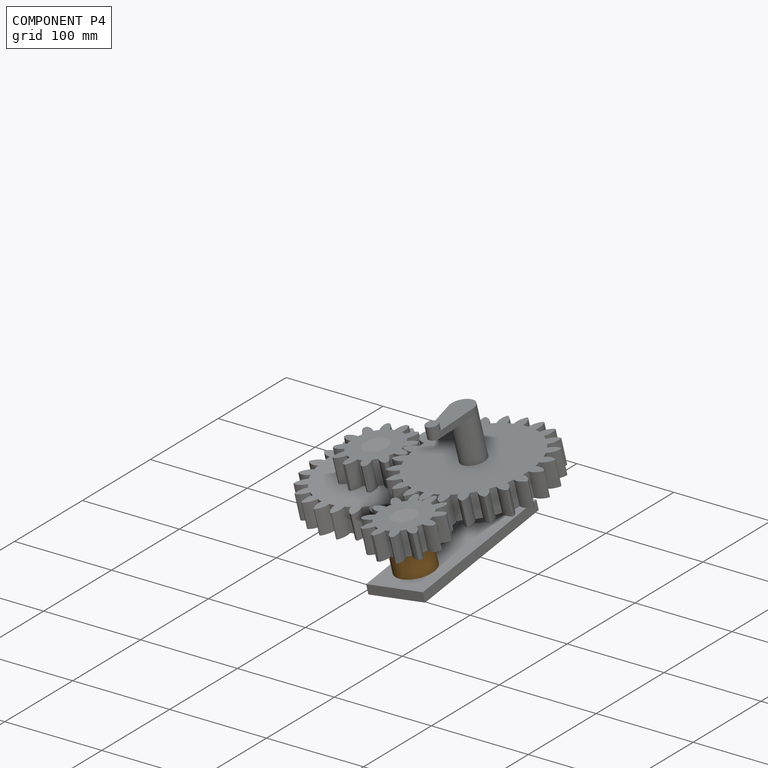
[diagram: component P4 — assembled]
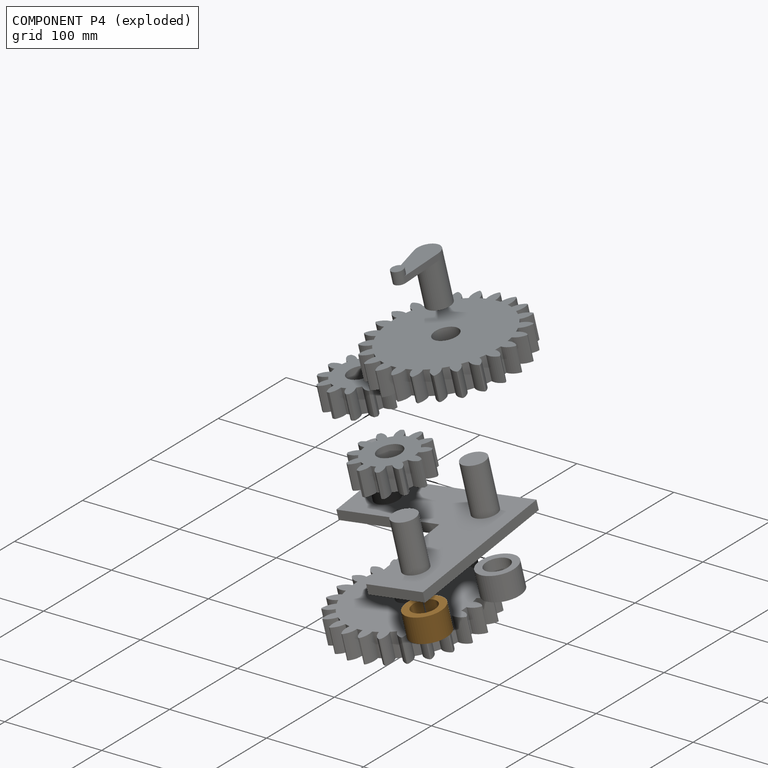
[diagram: component P4 — exploded]
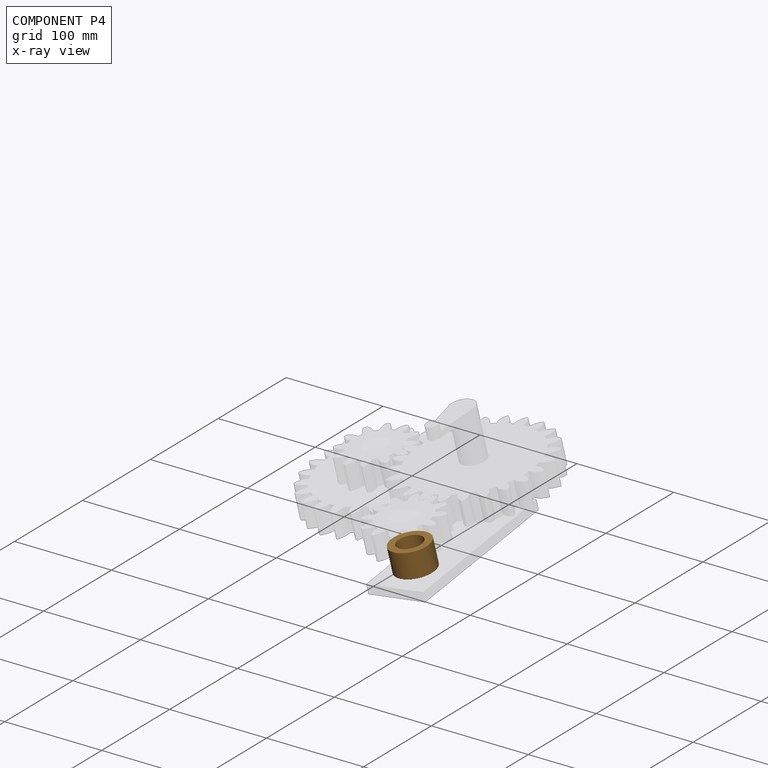
[diagram: component P4 — x-ray view]
COMPONENT P4 — geometry summary (no construction recipe available for this part):
  bounding box: 40.0 x 40.0 x 25.4 mm
  B-rep topology: 1 solid, 4 faces, 12 edges
  volume: 19048 mm^3 (47% of its bounding box)
  symmetry: 2-fold rotationally symmetric about the x axis; revolution-symmetric about the y axis through its bounding-box center; 2-fold rotationally symmetric about the z axis; mirror-symmetric across its x mid-plane, y mid-plane, z mid-plane
Held by: FASTENED mate "Fastened 4" to P6.
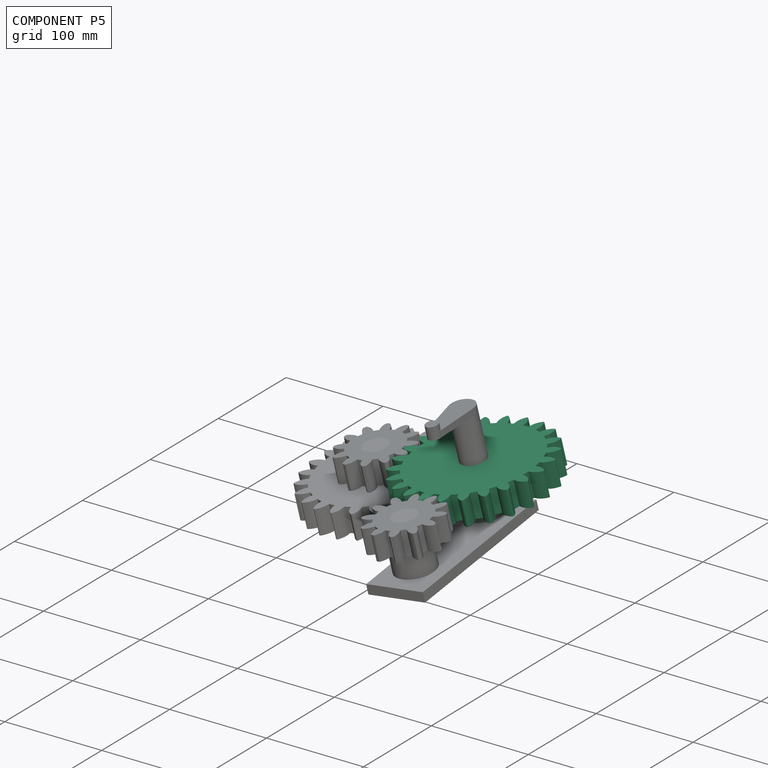
[diagram: component P5 — assembled]
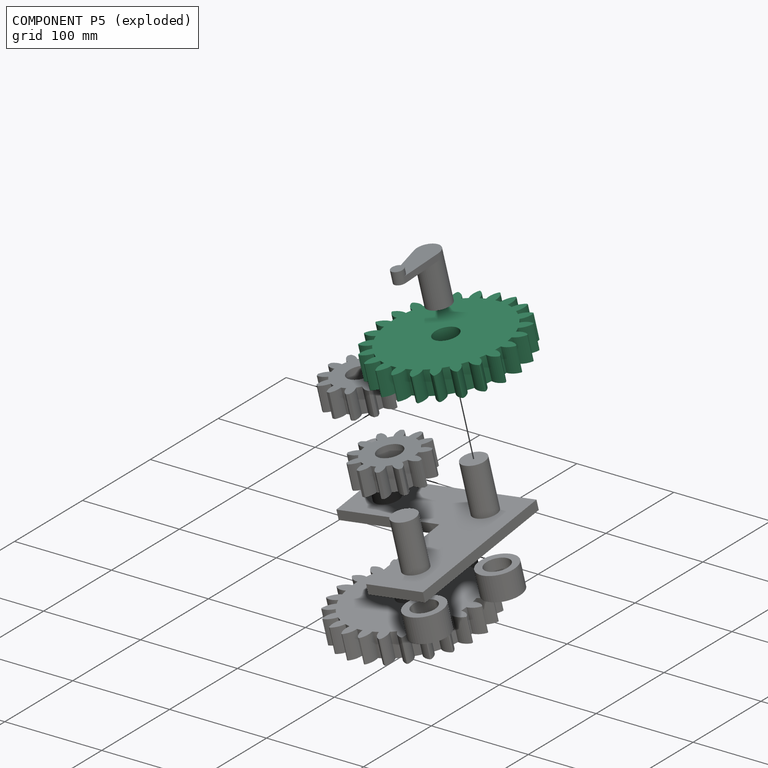
[diagram: component P5 — exploded]
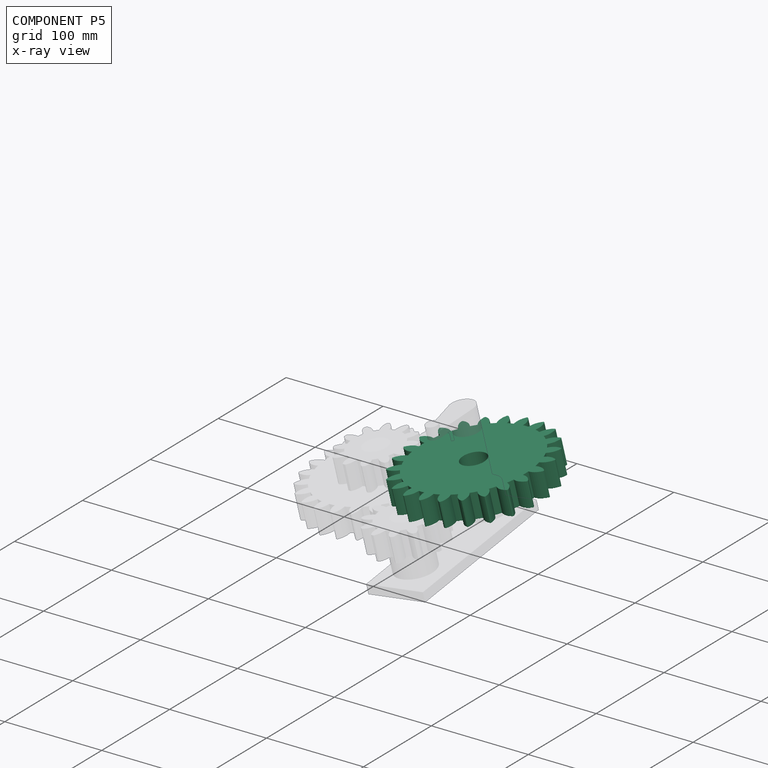
[diagram: component P5 — x-ray view]
COMPONENT P5 — same part as P2 (CADFS 00226644); its construction recipe is shown at P2.
Held by: FASTENED mate "Fastened 3" to P3; REVOLUTE mate "Revolute 4" to P6.
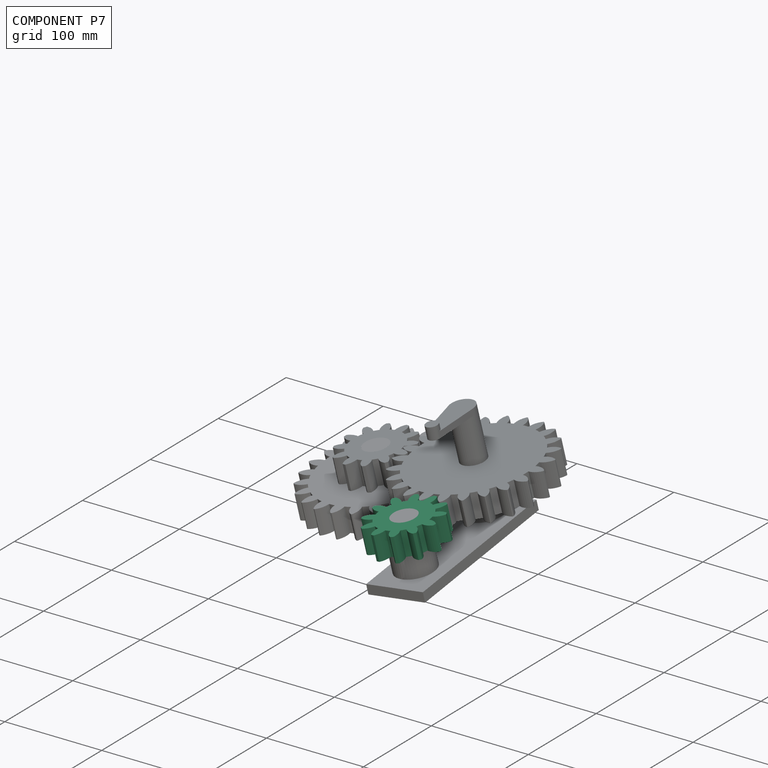
[diagram: component P7 — assembled]
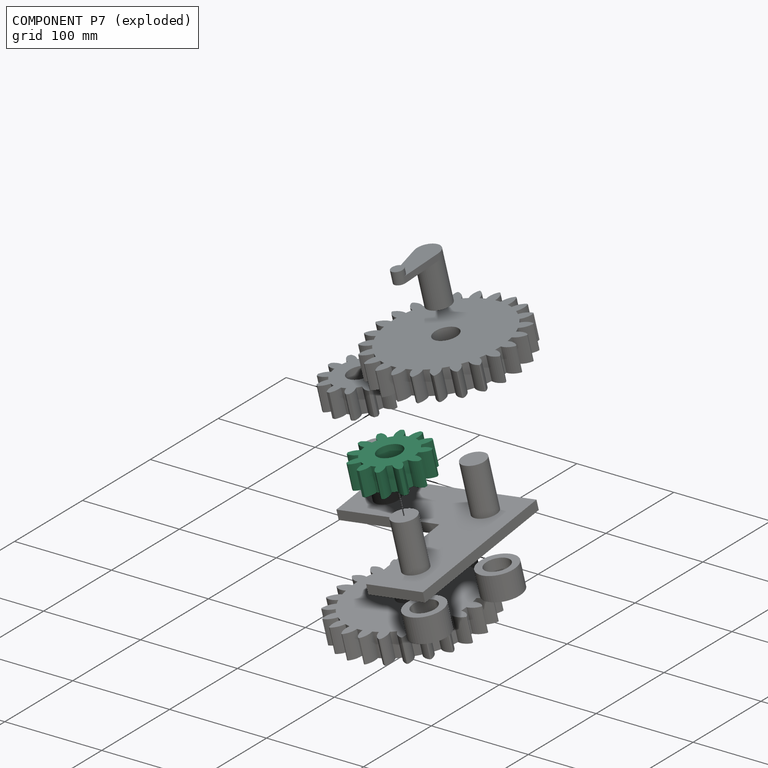
[diagram: component P7 — exploded]
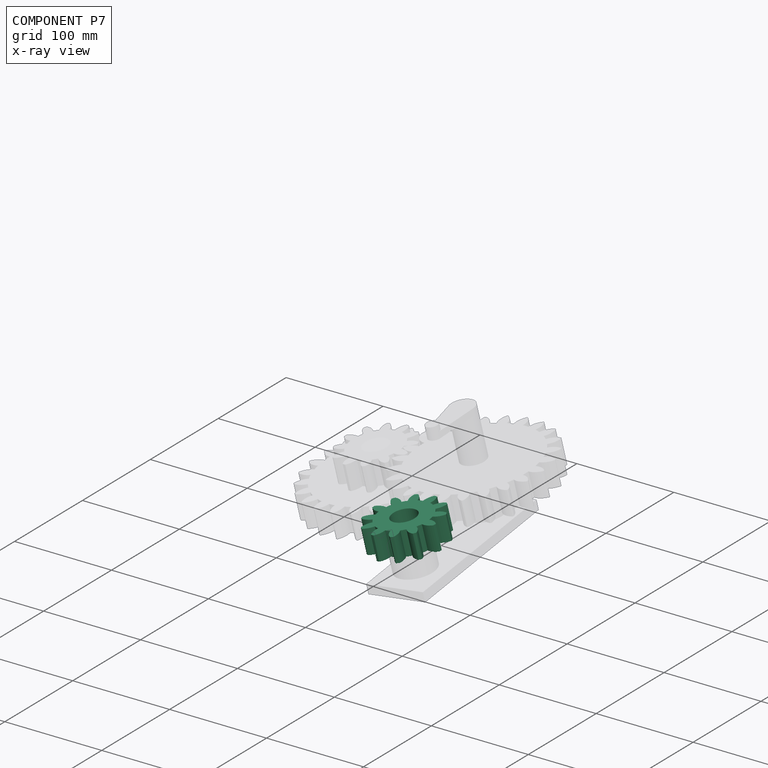
[diagram: component P7 — x-ray view]
COMPONENT P7 — same part as P1 (CADFS 00387537); its construction recipe is shown at P1.
Held by: REVOLUTE mate "Revolute 3" to P6.
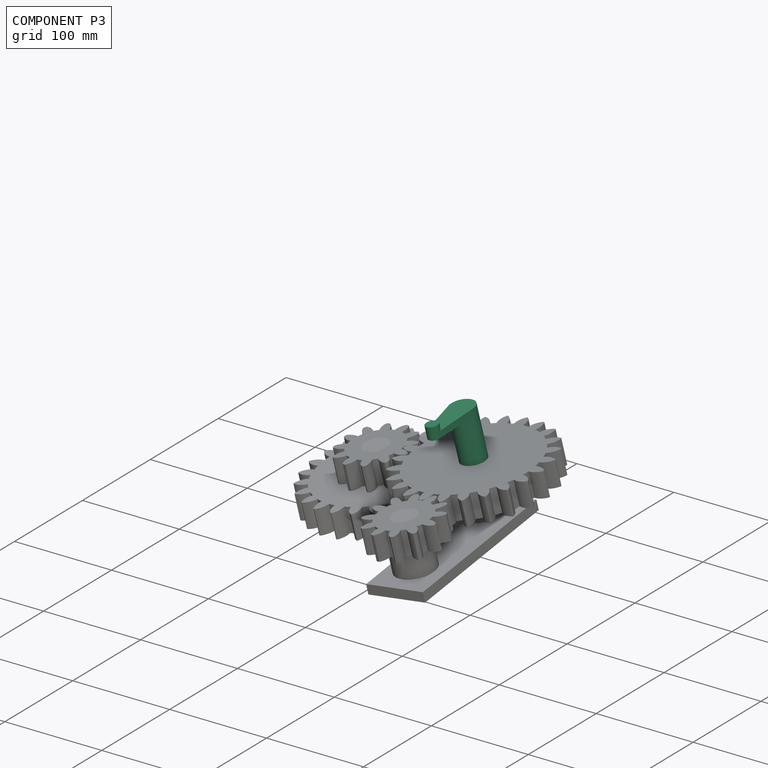
[diagram: component P3 — assembled]
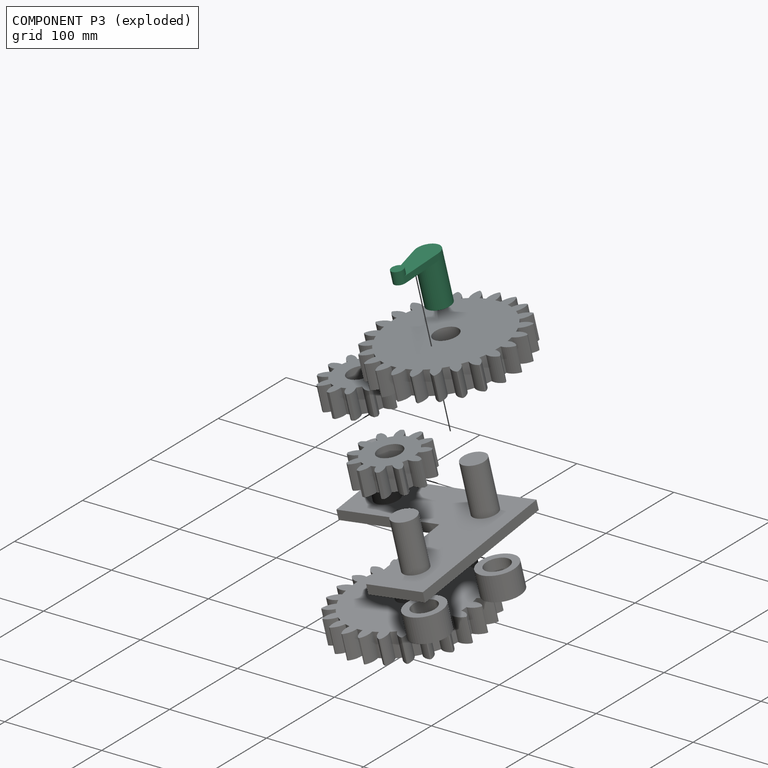
[diagram: component P3 — exploded]
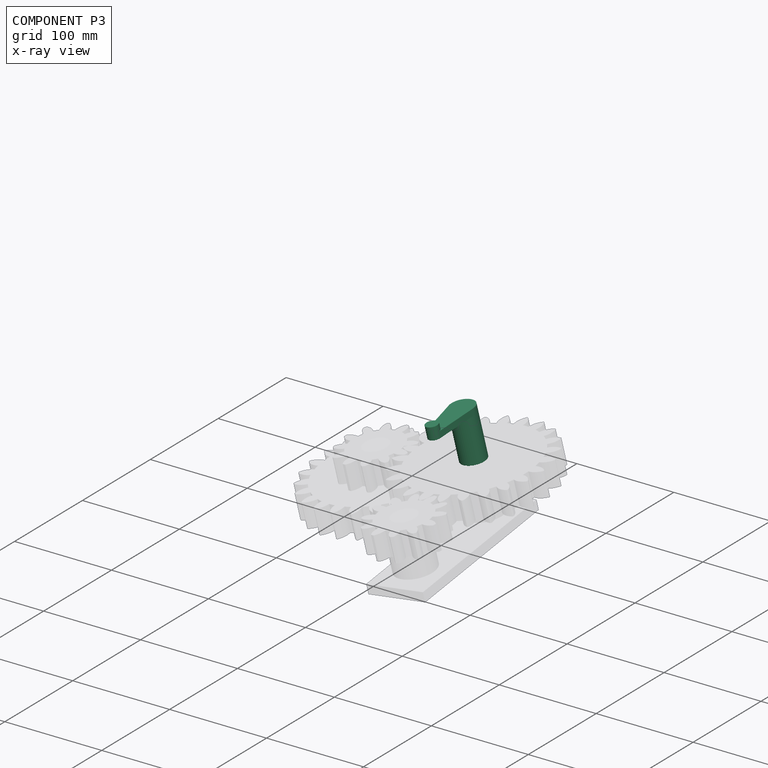
[diagram: component P3 — x-ray view]
COMPONENT P3 — recipe-attached (CADFS 00140564, mesh-verified: the recipe's output STEP matches this component's geometry to below the mesh-comparison resolution (tessellation chordal tolerance ~0.134 mm)).
Held by: FASTENED mate "Fastened 3" to P5.
Construction recipe (FeatureScript — the CAD program that rebuilds this solid; sketch coordinates are in the units given by the * unit suffixes, e.g. mm):

FeatureScript 1511;
import(path : "onshape/std/geometry.fs", version : "1511.0");
import(path : "onshape/std/common.fs", version : "1511.0");
const mm = millimeter;
const VERTEX = EntityType.VERTEX;
const EDGE = EntityType.EDGE;
const FACE = EntityType.FACE;
const BODY = EntityType.BODY;
function v(x, y){return vector(x, y);}
function OD(order){return orderDisambiguation(order);}
function OSD(set){return originalSetDisambiguation(set);}
function TD(topology){return topologyDisambiguation(topology);}
function TDD(query){return trueDependencyDisambiguation(query);}
function sQuery(a, b, c) {return sketchEntityQuery(a, b, c);}

annotation { "Feature Type Name" : "Feature", "Feature Type Description" : "" }
export const myFeature = defineFeature(function(context is Context, id is Id, definition is map)
    precondition{}
    {
        {
            var Q0;
            Q0=qCreatedBy(makeId("Front.planeOp"),FACE);
            var sketch = newSketch(context, id + "F0", { "sketchPlane" : qUnion([Q0])});
            skCircle(sketch, "E0", {"center": v(0, 0) * mm, "radius": 12.7 * mm});
            skCircle(sketch, "E1", {"center": v(44.45, 0) * mm, "radius": 6.35 * mm});
            skLineSegment(sketch, "E2", {"start": v(12.7, 0) * mm, "end": v(38.1, 0) * mm});
            skLineSegment(sketch, "E3", {"start": v(45.36, 6.28) * mm, "end": v(1.81, 12.57) * mm});
            skLineSegment(sketch, "E4", {"start": v(1.81, -12.57) * mm, "end": v(45.36, -6.28) * mm});
            skSolve(sketch);
        }
        {
            var Q0;
            Q0=makeQuery(id+"F0.imprint","IMPRINT",FACE,{"disambiguationData":[TD([[makeQuery(id+"F0.imprint","IMPRINT",EDGE,{"derivedFrom":sQuery(id+"F0.wireOp",EDGE,"E0")}),1.0]])]});
            extrude(context, id + "F1", {"entities" : qUnion([Q0]), "depth" : 50.8 * mm});
        }
        {
            var Q0;
            {var subQ0=sQuery(id+"F0.wireOp",EDGE,"E2");Q0=makeQuery(id+"F0.imprint","IMPRINT",FACE,{"disambiguationData":[TD([[makeQuery(id+"F0.imprint","IMPRINT",EDGE,{"derivedFrom":subQ0}),1.0]])]});}
            var Q1;
            {var subQ0=sQuery(id+"F0.wireOp",EDGE,"E2");Q1=makeQuery(id+"F0.imprint","IMPRINT",FACE,{"disambiguationData":[TD([[makeQuery(id+"F0.imprint","IMPRINT",EDGE,{"derivedFrom":subQ0}),-1.0]])]});}
            var Q2;
            {var subQ0=sQuery(id+"F0.wireOp",EDGE,"E1");var subQ1=makeQuery(id+"F0.imprint","INTERSECT",VERTEX,{"derivedFrom":[subQ0,sQuery(id+"F0.wireOp",EDGE,"E2")]});Q2=makeQuery(id+"F0.imprint","IMPRINT",FACE,{"disambiguationData":[TD([[makeQuery(id+"F0.imprint","IMPRINT",EDGE,{"disambiguationData":[TD([[subQ1,1.0]])],"derivedFrom":subQ0}),1.0]])]});}
            extrude(context, id + "F2", {"entities" : qUnion([Q0, Q1, Q2]), "operationType" : NewBodyOperationType.ADD, "depth" : 50.8 * mm, "hasSecondDirection" : true, "secondDirectionOppositeDirection" : false, "secondDirectionDepth" : 44.45 * mm});
        }
        {
            var Q0;
            {var subQ0=sQuery(id+"F0.wireOp",EDGE,"E1");var subQ1=makeQuery(id+"F0.imprint","INTERSECT",VERTEX,{"derivedFrom":[subQ0,sQuery(id+"F0.wireOp",EDGE,"E2")]});Q0=makeQuery(id+"F0.imprint","IMPRINT",FACE,{"disambiguationData":[TD([[makeQuery(id+"F0.imprint","IMPRINT",EDGE,{"disambiguationData":[TD([[subQ1,1.0]])],"derivedFrom":subQ0}),1.0]])]});}
            extrude(context, id + "F3", {"entities" : qUnion([Q0]), "operationType" : NewBodyOperationType.ADD, "depth" : 57.15 * mm, "hasSecondDirection" : true, "secondDirectionOppositeDirection" : false, "secondDirectionDepth" : 50.8 * mm});
        }
    });
PROVENANCE & LICENSES
Assembly (occurrences, transforms, mates, per-part STEP geometry): AutoMate dataset, Zenodo record 7776208, CC0.
Construction recipes: CADFS (HuggingFace VladPyatov/CADFS, CC-BY-4.0, layered over the ABC dataset), FeatureScript reconstruction programs keyed by ABC model id.
Join: ABC meta listings map ABC model id -> Onshape documentId; within a shared document, parts are matched by geometric signature (bounding-box dims + volume at 0.1% relative tolerance, exact B-rep face/solid counts).
Verification: 6 of this assembly's 8 components carry a recipe attachment, and every attachment is mesh-verified: the CADFS STEP and the AutoMate member STEP were compared as meshes in their shared local frame (symmetric sampled-point-to-mesh distance); worst across the 6 attachments: below the mesh-comparison resolution (tessellation chordal tolerance ~0.37 mm) on a 246 mm part.
Renders: orthographic iso camera (az 35 / el 25); the floor grid conveys scale (grid pitch printed in each image; no ruler). In the exploded view each component is displaced by its stored offset vector: the offsets alone carry the explosion direction (mate normal/axis signs are not orientation cues and do not encode it), and separation distances are assigned per mate-chain, not proportionally to assembly-order depth.
